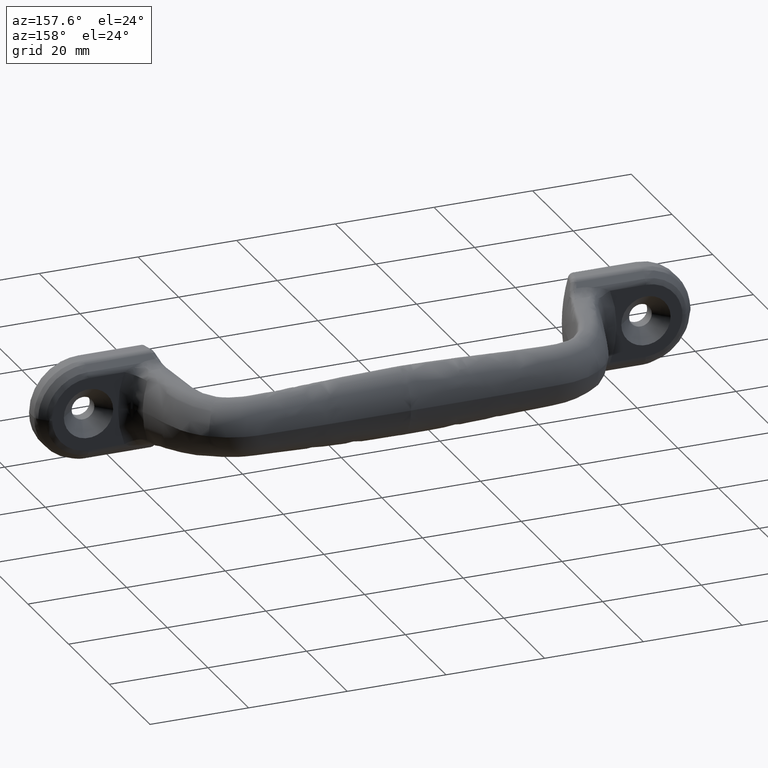
[diagram: clean part render]
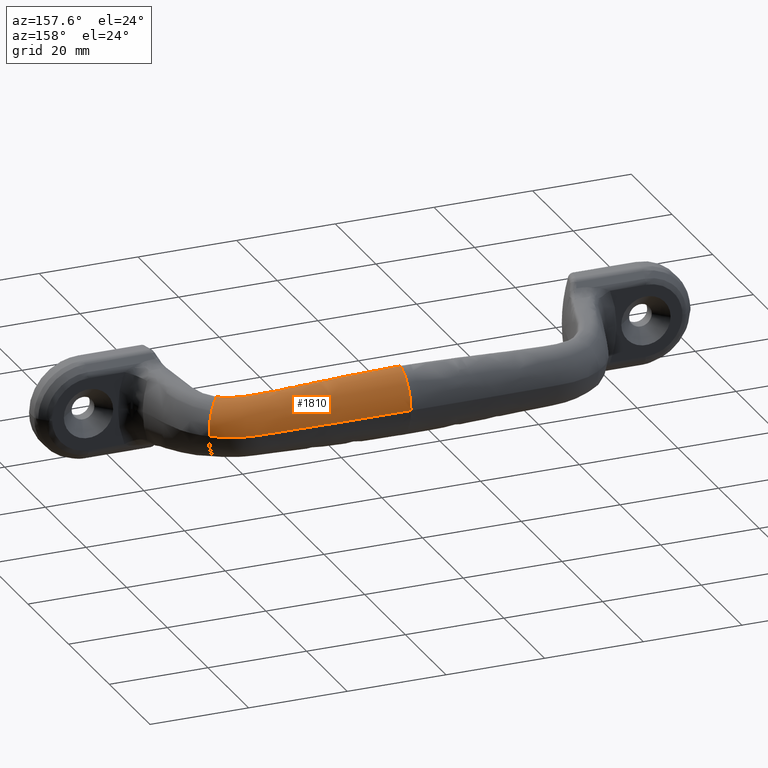
[diagram: same view with one face highlighted and labeled with its STEP entity id]
A machine part, auxiliary view. The second image highlights one B-rep face of the part: STEP entity #1810.
In plain terms, the highlighted face is a freeform B-spline surface patch.
Its self-contained STEP definition (entity closure, byte-faithful):
#261=B_SPLINE_CURVE_WITH_KNOTS('',3,(#10721,#10722,#10723,#10724,#10725,
#10726,#10727,#10728,#10729,#10730,#10731,#10732,#10733,#10734,#10735,#10736,
#10737,#10738,#10739,#10740,#10741,#10742,#10743),.UNSPECIFIED.,.F.,.F.,
(4,1,1,1,1,1,1,1,1,1,1,1,1,1,1,1,1,1,1,1,4),(0.,0.353003254931356,0.354323730462373,
0.363764489947769,0.372333549510409,0.377519572087364,0.390343368558445,
0.418366587694137,0.42100795080128,0.432665383859241,0.463349332040127,
0.465433907205898,0.47472511908588,0.47573455273132,0.550484271001045,0.553026578208625,
0.604720158096089,0.675659492833686,0.682082077134009,0.849921462595966,
1.),.UNSPECIFIED.);
#262=B_SPLINE_CURVE_WITH_KNOTS('',3,(#11274,#11275,#11276,#11277,#11278,
#11279,#11280,#11281,#11282,#11283,#11284,#11285,#11286,#11287,#11288,#11289,
#11290,#11291,#11292,#11293,#11294,#11295,#11296,#11297,#11298,#11299,#11300,
#11301,#11302,#11303,#11304,#11305,#11306,#11307,#11308,#11309,#11310,#11311,
#11312,#11313,#11314,#11315,#11316,#11317,#11318,#11319,#11320,#11321,#11322,
#11323,#11324,#11325,#11326,#11327,#11328,#11329,#11330,#11331),
 .UNSPECIFIED.,.F.,.F.,(4,3,3,3,3,3,3,3,3,3,3,3,3,3,3,3,3,3,3,4),(0.0041073084713925,
0.0124537638370218,0.0207997993101031,0.029144937516268,0.045830638831574,
0.0874983465707772,0.0958200104927912,0.112456388980393,0.120785511921754,
0.145820009038889,0.154175523277909,0.170893472016266,0.179253289586592,
0.212694329669938,0.455001657754051,0.646774399969483,0.655106644598597,
0.663438746250009,0.671770752302562,0.680102710471393),.UNSPECIFIED.);
#264=B_SPLINE_CURVE_WITH_KNOTS('',3,(#11700,#11701,#11702,#11703,#11704,
#11705,#11706,#11707,#11708,#11709,#11710,#11711,#11712,#11713,#11714,#11715,
#11716,#11717,#11718,#11719,#11720,#11721,#11722,#11723,#11724,#11725,#11726,
#11727,#11728,#11729,#11730,#11731,#11732,#11733,#11734,#11735,#11736,#11737,
#11738,#11739,#11740,#11741,#11742,#11743,#11744,#11745,#11746,#11747,#11748,
#11749,#11750,#11751,#11752,#11753,#11754,#11755,#11756,#11757),
 .UNSPECIFIED.,.F.,.F.,(4,3,3,3,3,3,3,3,3,3,3,3,3,3,3,3,3,3,3,4),(0.,0.00833195814589304,
0.0166639641755076,0.024996065803981,0.033328310410156,0.22510105209763,
0.467408379514661,0.500849419505942,0.509209237053253,0.525927185745585,
0.534282699961602,0.559317197009816,0.567646319928246,0.584282698370048,
0.592604362269152,0.634272069893642,0.650957771163012,0.659302909346202,
0.667648944795865,0.675995400138959),.UNSPECIFIED.);
#265=B_SPLINE_CURVE_WITH_KNOTS('',3,(#12287,#12288,#12289,#12290,#12291,
#12292,#12293,#12294,#12295,#12296,#12297,#12298,#12299,#12300,#12301,#12302,
#12303,#12304,#12305,#12306,#12307,#12308,#12309,#12310,#12311,#12312,#12313,
#12314,#12315,#12316,#12317,#12318,#12319,#12320,#12321,#12322,#12323,#12324,
#12325,#12326,#12327,#12328,#12329,#12330,#12331,#12332,#12333,#12334,#12335,
#12336,#12337,#12338,#12339,#12340,#12341,#12342,#12343,#12344,#12345,#12346,
#12347,#12348,#12349,#12350,#12351,#12352,#12353,#12354,#12355,#12356,#12357,
#12358,#12359,#12360,#12361,#12362,#12363,#12364,#12365,#12366,#12367,#12368,
#12369,#12370,#12371,#12372,#12373,#12374,#12375,#12376,#12377,#12378,#12379,
#12380,#12381,#12382,#12383,#12384,#12385,#12386,#12387,#12388,#12389,#12390,
#12391,#12392,#12393,#12394,#12395,#12396,#12397,#12398,#12399,#12400,#12401,
#12402,#12403,#12404,#12405,#12406,#12407,#12408,#12409,#12410,#12411,#12412,
#12413,#12414,#12415,#12416,#12417,#12418,#12419,#12420,#12421,#12422,#12423,
#12424,#12425,#12426,#12427,#12428,#12429,#12430,#12431,#12432,#12433,#12434,
#12435,#12436),.UNSPECIFIED.,.F.,.F.,(4,2,2,2,1,1,1,2,2,2,2,1,1,1,2,2,2,
2,1,1,1,1,2,2,1,2,2,2,2,2,2,2,1,2,2,2,2,2,1,1,1,2,2,2,2,2,1,1,2,2,2,1,1,
1,2,2,2,2,2,1,1,1,2,2,2,2,1,1,1,1,2,2,2,2,1,1,1,2,2,2,2,1,1,1,2,2,2,2,1,
2,2,4),(0.,0.0624999999950294,0.0937499999925442,0.109374999991302,0.117187499990681,
0.12109374999037,0.123046874990215,0.124023437490137,0.12499999999006,0.15624999998758,
0.17187499998634,0.17968749998572,0.183593749985411,0.185546874985256,0.18701171873514,
0.187499999985101,0.218749999982602,0.234374999981353,0.242187499980729,
0.246093749980417,0.248046874980261,0.249023437480181,0.249511718730141,
0.249999999980101,0.312499999974955,0.343749999972381,0.359374999971095,
0.37499999996981,0.406249999967237,0.437499999964665,0.468749999962093,
0.484374999960803,0.492187499960155,0.496093749959834,0.499999999959514,
0.531249999956948,0.546874999955662,0.554687499955019,0.558593749954697,
0.560546874954533,0.561523437454451,0.56201171870441,0.56249999995437,0.578124999955798,
0.585937499956511,0.589843749956866,0.591796874957042,0.59277343745713,
0.593261718707174,0.593749999957218,0.624999999959973,0.64062499996135,
0.648437499962037,0.65234374996238,0.655761718712677,0.656249999962719,
0.671874999964216,0.679687499964966,0.683593749965343,0.685546874965531,
0.686523437465625,0.687011718715671,0.687255859340693,0.687499999965716,
0.718749999968943,0.734374999970556,0.742187499971363,0.746093749971766,
0.748046874971969,0.749023437472071,0.749511718722123,0.749999999972175,
0.781249999975602,0.796874999977316,0.804687499978173,0.808593749978603,
0.810546874978818,0.811523437478926,0.812499999979035,0.843749999982523,
0.859374999984267,0.867187499985139,0.871093749985574,0.873046874985792,
0.874023437485901,0.874999999986009,0.906249999989508,0.921874999991256,
0.92968749999213,0.933593749992567,0.937499999993004,1.),.UNSPECIFIED.);
#410=B_SPLINE_SURFACE_WITH_KNOTS('',3,3,((#11758,#11759,#11760,#11761,#11762,
#11763,#11764,#11765,#11766,#11767,#11768,#11769,#11770,#11771,#11772,#11773,
#11774,#11775,#11776,#11777,#11778,#11779,#11780),(#11781,#11782,#11783,
#11784,#11785,#11786,#11787,#11788,#11789,#11790,#11791,#11792,#11793,#11794,
#11795,#11796,#11797,#11798,#11799,#11800,#11801,#11802,#11803),(#11804,
#11805,#11806,#11807,#11808,#11809,#11810,#11811,#11812,#11813,#11814,#11815,
#11816,#11817,#11818,#11819,#11820,#11821,#11822,#11823,#11824,#11825,#11826),
(#11827,#11828,#11829,#11830,#11831,#11832,#11833,#11834,#11835,#11836,
#11837,#11838,#11839,#11840,#11841,#11842,#11843,#11844,#11845,#11846,#11847,
#11848,#11849),(#11850,#11851,#11852,#11853,#11854,#11855,#11856,#11857,
#11858,#11859,#11860,#11861,#11862,#11863,#11864,#11865,#11866,#11867,#11868,
#11869,#11870,#11871,#11872),(#11873,#11874,#11875,#11876,#11877,#11878,
#11879,#11880,#11881,#11882,#11883,#11884,#11885,#11886,#11887,#11888,#11889,
#11890,#11891,#11892,#11893,#11894,#11895),(#11896,#11897,#11898,#11899,
#11900,#11901,#11902,#11903,#11904,#11905,#11906,#11907,#11908,#11909,#11910,
#11911,#11912,#11913,#11914,#11915,#11916,#11917,#11918),(#11919,#11920,
#11921,#11922,#11923,#11924,#11925,#11926,#11927,#11928,#11929,#11930,#11931,
#11932,#11933,#11934,#11935,#11936,#11937,#11938,#11939,#11940,#11941),
(#11942,#11943,#11944,#11945,#11946,#11947,#11948,#11949,#11950,#11951,
#11952,#11953,#11954,#11955,#11956,#11957,#11958,#11959,#11960,#11961,#11962,
#11963,#11964),(#11965,#11966,#11967,#11968,#11969,#11970,#11971,#11972,
#11973,#11974,#11975,#11976,#11977,#11978,#11979,#11980,#11981,#11982,#11983,
#11984,#11985,#11986,#11987),(#11988,#11989,#11990,#11991,#11992,#11993,
#11994,#11995,#11996,#11997,#11998,#11999,#12000,#12001,#12002,#12003,#12004,
#12005,#12006,#12007,#12008,#12009,#12010),(#12011,#12012,#12013,#12014,
#12015,#12016,#12017,#12018,#12019,#12020,#12021,#12022,#12023,#12024,#12025,
#12026,#12027,#12028,#12029,#12030,#12031,#12032,#12033),(#12034,#12035,
#12036,#12037,#12038,#12039,#12040,#12041,#12042,#12043,#12044,#12045,#12046,
#12047,#12048,#12049,#12050,#12051,#12052,#12053,#12054,#12055,#12056),
(#12057,#12058,#12059,#12060,#12061,#12062,#12063,#12064,#12065,#12066,
#12067,#12068,#12069,#12070,#12071,#12072,#12073,#12074,#12075,#12076,#12077,
#12078,#12079),(#12080,#12081,#12082,#12083,#12084,#12085,#12086,#12087,
#12088,#12089,#12090,#12091,#12092,#12093,#12094,#12095,#12096,#12097,#12098,
#12099,#12100,#12101,#12102),(#12103,#12104,#12105,#12106,#12107,#12108,
#12109,#12110,#12111,#12112,#12113,#12114,#12115,#12116,#12117,#12118,#12119,
#12120,#12121,#12122,#12123,#12124,#12125),(#12126,#12127,#12128,#12129,
#12130,#12131,#12132,#12133,#12134,#12135,#12136,#12137,#12138,#12139,#12140,
#12141,#12142,#12143,#12144,#12145,#12146,#12147,#12148),(#12149,#12150,
#12151,#12152,#12153,#12154,#12155,#12156,#12157,#12158,#12159,#12160,#12161,
#12162,#12163,#12164,#12165,#12166,#12167,#12168,#12169,#12170,#12171),
(#12172,#12173,#12174,#12175,#12176,#12177,#12178,#12179,#12180,#12181,
#12182,#12183,#12184,#12185,#12186,#12187,#12188,#12189,#12190,#12191,#12192,
#12193,#12194),(#12195,#12196,#12197,#12198,#12199,#12200,#12201,#12202,
#12203,#12204,#12205,#12206,#12207,#12208,#12209,#12210,#12211,#12212,#12213,
#12214,#12215,#12216,#12217),(#12218,#12219,#12220,#12221,#12222,#12223,
#12224,#12225,#12226,#12227,#12228,#12229,#12230,#12231,#12232,#12233,#12234,
#12235,#12236,#12237,#12238,#12239,#12240),(#12241,#12242,#12243,#12244,
#12245,#12246,#12247,#12248,#12249,#12250,#12251,#12252,#12253,#12254,#12255,
#12256,#12257,#12258,#12259,#12260,#12261,#12262,#12263),(#12264,#12265,
#12266,#12267,#12268,#12269,#12270,#12271,#12272,#12273,#12274,#12275,#12276,
#12277,#12278,#12279,#12280,#12281,#12282,#12283,#12284,#12285,#12286)),
 .UNSPECIFIED.,.F.,.F.,.F.,(4,1,1,1,1,1,1,1,1,1,1,1,1,1,1,1,1,1,1,1,4),
(4,1,1,1,1,1,1,1,1,1,1,1,1,1,1,1,1,1,1,1,4),(0.,0.00833195816883126,0.0166639642213842,
0.0249960658727962,0.0333283105019102,0.225101052717342,0.467408380801455,
0.500849420884801,0.509209238455127,0.525927187193484,0.534282701432504,
0.559317198549639,0.567646321491,0.584282699978602,0.592604363900616,0.634272071639819,
0.650957772955125,0.65930291116129,0.667648946516208,0.675995401673522,
0.680102710471393),(-4.84566792892465E-6,0.353003254931356,0.354323730462373,
0.363764489947769,0.372333549510409,0.377519572087364,0.390343368558445,
0.418366587694137,0.42100795080128,0.432665383859241,0.463349332040127,
0.465433907205898,0.47472511908588,0.47573455273132,0.550484271001045,0.553026578208625,
0.604720158096089,0.675659492833686,0.682082077134009,0.849921462595966,
1.0000048450564),.UNSPECIFIED.);
#510=FACE_OUTER_BOUND('',#612,.T.);
#612=EDGE_LOOP('',(#1475,#1476,#1477,#1478));
#774=VERTEX_POINT('',#9640);
#775=VERTEX_POINT('',#9696);
#776=VERTEX_POINT('',#11273);
#777=VERTEX_POINT('',#11332);
#1025=EDGE_CURVE('',#775,#774,#261,.T.);
#1026=EDGE_CURVE('',#776,#774,#262,.T.);
#1028=EDGE_CURVE('',#775,#777,#264,.T.);
#1029=EDGE_CURVE('',#777,#776,#265,.T.);
#1475=ORIENTED_EDGE('',*,*,#1028,.T.);
#1476=ORIENTED_EDGE('',*,*,#1029,.T.);
#1477=ORIENTED_EDGE('',*,*,#1026,.T.);
#1478=ORIENTED_EDGE('',*,*,#1025,.F.);
#1810=ADVANCED_FACE('',(#510),#410,.T.);
#9640=CARTESIAN_POINT('',(450.,-50.,0.));
#9696=CARTESIAN_POINT('',(450.,-56.800000191,0.));
#10721=CARTESIAN_POINT('Ctrl Pts',(450.,-56.800000191,0.));
#10722=CARTESIAN_POINT('Ctrl Pts',(450.,-56.799989713,1.986665854));
#10723=CARTESIAN_POINT('Ctrl Pts',(450.,-56.564086508,3.980696868));
#10724=CARTESIAN_POINT('Ctrl Pts',(450.,-56.087848445,5.971781563));
#10725=CARTESIAN_POINT('Ctrl Pts',(450.,-56.062164654,6.077496385));
#10726=CARTESIAN_POINT('Ctrl Pts',(450.,-56.03098987,6.204267304));
#10727=CARTESIAN_POINT('Ctrl Pts',(450.,-55.991498211,6.34863034));
#10728=CARTESIAN_POINT('Ctrl Pts',(450.,-55.884901399,6.586613299));
#10729=CARTESIAN_POINT('Ctrl Pts',(450.,-55.710316642,6.767826394));
#10730=CARTESIAN_POINT('Ctrl Pts',(450.,-55.506757148,6.891783065));
#10731=CARTESIAN_POINT('Ctrl Pts',(450.,-55.275391882,6.997226306));
#10732=CARTESIAN_POINT('Ctrl Pts',(450.,-55.017534856,7.014012011));
#10733=CARTESIAN_POINT('Ctrl Pts',(450.,-54.785818975,6.965938374));
#10734=CARTESIAN_POINT('Ctrl Pts',(450.,-54.71922393,6.94492659));
#10735=CARTESIAN_POINT('Ctrl Pts',(450.,-54.27551201,6.765376007));
#10736=CARTESIAN_POINT('Ctrl Pts',(450.,-53.881720522,6.564256324));
#10737=CARTESIAN_POINT('Ctrl Pts',(450.,-53.266188594,6.179362939));
#10738=CARTESIAN_POINT('Ctrl Pts',(450.,-52.691615783,5.769499481));
#10739=CARTESIAN_POINT('Ctrl Pts',(450.,-52.161586495,5.269465322));
#10740=CARTESIAN_POINT('Ctrl Pts',(450.,-51.244516074,4.238494263));
#10741=CARTESIAN_POINT('Ctrl Pts',(450.,-50.307189531,2.633758351));
#10742=CARTESIAN_POINT('Ctrl Pts',(450.,-50.000038121,0.844645597));
#10743=CARTESIAN_POINT('Ctrl Pts',(450.,-50.,0.));
#11273=CARTESIAN_POINT('',(489.491267111601,-53.4242753773122,-3.49503389223627E-8));
#11274=CARTESIAN_POINT('Ctrl Pts',(489.491267110577,-53.4242753764986,9.12128100185361E-9));
#11275=CARTESIAN_POINT('Ctrl Pts',(489.353431031696,-53.3149946494507,1.43788164710221E-11));
#11276=CARTESIAN_POINT('Ctrl Pts',(489.227797740543,-53.2194947702635,2.77510581065385E-16));
#11277=CARTESIAN_POINT('Ctrl Pts',(489.096746854096,-53.1231764112693,2.77555756156289E-16));
#11278=CARTESIAN_POINT('Ctrl Pts',(488.965702560543,-53.0268628978484,2.77550109270026E-16));
#11279=CARTESIAN_POINT('Ctrl Pts',(488.829243164484,-52.9297327809456,2.77541638940388E-16));
#11280=CARTESIAN_POINT('Ctrl Pts',(488.692172043153,-52.8357725390238,2.77555756156382E-16));
#11281=CARTESIAN_POINT('Ctrl Pts',(488.555115658086,-52.7418223985949,2.77465405975287E-16));
#11282=CARTESIAN_POINT('Ctrl Pts',(488.41744767926,-52.6510414516245,2.77510581065769E-16));
#11283=CARTESIAN_POINT('Ctrl Pts',(488.278076738468,-52.5625219393897,2.77555756156289E-16));
#11284=CARTESIAN_POINT('Ctrl Pts',(487.999411264914,-52.3855314444167,2.77216942977387E-16));
#11285=CARTESIAN_POINT('Ctrl Pts',(487.713937677508,-52.2175817298312,2.77375055794208E-16));
#11286=CARTESIAN_POINT('Ctrl Pts',(487.423009526467,-52.0595475678857,2.77555756156289E-16));
#11287=CARTESIAN_POINT('Ctrl Pts',(486.696500706632,-51.6649030067537,2.76200503440682E-16));
#11288=CARTESIAN_POINT('Ctrl Pts',(485.935976900442,-51.332092427277,2.76832954707966E-16));
#11289=CARTESIAN_POINT('Ctrl Pts',(485.151699449045,-51.0662959675301,2.77555756156289E-16));
#11290=CARTESIAN_POINT('Ctrl Pts',(484.995067521679,-51.0132124424292,2.77197178875285E-16));
#11291=CARTESIAN_POINT('Ctrl Pts',(484.837488155021,-50.9628018464547,2.77375055794208E-16));
#11292=CARTESIAN_POINT('Ctrl Pts',(484.679023430849,-50.9151020262613,2.77555756156289E-16));
#11293=CARTESIAN_POINT('Ctrl Pts',(484.362226315156,-50.8197422196212,2.76855542253225E-16));
#11294=CARTESIAN_POINT('Ctrl Pts',(484.041890726212,-50.7352164630051,2.77194355432127E-16));
#11295=CARTESIAN_POINT('Ctrl Pts',(483.719496924289,-50.6618155006857,2.77555756156289E-16));
#11296=CARTESIAN_POINT('Ctrl Pts',(483.558088140896,-50.625066779224,2.77200002318442E-16));
#11297=CARTESIAN_POINT('Ctrl Pts',(483.396163450678,-50.5911065725366,2.77375055794208E-16));
#11298=CARTESIAN_POINT('Ctrl Pts',(483.233790252435,-50.5599497714149,2.77555756156289E-16));
#11299=CARTESIAN_POINT('Ctrl Pts',(482.745751908911,-50.4663030749557,2.76155328350162E-16));
#11300=CARTESIAN_POINT('Ctrl Pts',(482.253661752172,-50.3979822926242,2.76832954707966E-16));
#11301=CARTESIAN_POINT('Ctrl Pts',(481.75976132836,-50.354601687232,2.77555756156289E-16));
#11302=CARTESIAN_POINT('Ctrl Pts',(481.594917113416,-50.3401229755425,2.77200002318442E-16));
#11303=CARTESIAN_POINT('Ctrl Pts',(481.429871242412,-50.328422493579,2.77375055794208E-16));
#11304=CARTESIAN_POINT('Ctrl Pts',(481.264713207534,-50.3198630399948,2.77555756156289E-16));
#11305=CARTESIAN_POINT('Ctrl Pts',(480.934260349479,-50.3027370436579,2.76855542253226E-16));
#11306=CARTESIAN_POINT('Ctrl Pts',(480.603358464265,-50.2981855689274,2.77194355432127E-16));
#11307=CARTESIAN_POINT('Ctrl Pts',(480.272542924192,-50.2922748083317,2.77555756156289E-16));
#11308=CARTESIAN_POINT('Ctrl Pts',(480.107118468852,-50.2893191299135,2.77197178875285E-16));
#11309=CARTESIAN_POINT('Ctrl Pts',(479.941715604152,-50.2860235614675,2.77375055794208E-16));
#11310=CARTESIAN_POINT('Ctrl Pts',(479.776315288848,-50.2827816971769,2.77555756156289E-16));
#11311=CARTESIAN_POINT('Ctrl Pts',(479.114679011817,-50.2698135537008,2.76155328350162E-16));
#11312=CARTESIAN_POINT('Ctrl Pts',(478.453083529429,-50.2577047676699,2.76832954707966E-16));
#11313=CARTESIAN_POINT('Ctrl Pts',(477.791451021266,-50.2460095231126,2.77555756156289E-16));
#11314=CARTESIAN_POINT('Ctrl Pts',(472.997389448216,-50.1612680362177,2.63099727189815E-16));
#11315=CARTESIAN_POINT('Ctrl Pts',(468.201383958262,-50.0982381886278,2.717733445697E-16));
#11316=CARTESIAN_POINT('Ctrl Pts',(463.399356695396,-50.0572176177264,2.77555756156289E-16));
#11317=CARTESIAN_POINT('Ctrl Pts',(459.598819816572,-50.0247521226413,2.717733445697E-16));
#11318=CARTESIAN_POINT('Ctrl Pts',(455.794510995513,-50.0060728864407,2.76110153259642E-16));
#11319=CARTESIAN_POINT('Ctrl Pts',(451.98523843924,-50.0012557450275,2.77555756156289E-16));
#11320=CARTESIAN_POINT('Ctrl Pts',(451.819731128706,-50.0010464472921,2.77459759088934E-16));
#11321=CARTESIAN_POINT('Ctrl Pts',(451.654214447756,-50.0008633180748,2.77510581065769E-16));
#11322=CARTESIAN_POINT('Ctrl Pts',(451.488894699239,-50.0007063495257,2.77555756156289E-16));
#11323=CARTESIAN_POINT('Ctrl Pts',(451.323577787538,-50.00054938367,2.77504934179454E-16));
#11324=CARTESIAN_POINT('Ctrl Pts',(451.158457801512,-50.0004185775846,2.77533168611029E-16));
#11325=CARTESIAN_POINT('Ctrl Pts',(450.992596533497,-50.0003139324833,2.77555756156289E-16));
#11326=CARTESIAN_POINT('Ctrl Pts',(450.826737168501,-50.0002092885827,2.77527521724714E-16));
#11327=CARTESIAN_POINT('Ctrl Pts',(450.660136538527,-50.0001308050658,2.77544462383659E-16));
#11328=CARTESIAN_POINT('Ctrl Pts',(450.496298286553,-50.000078482845,2.77555756156289E-16));
#11329=CARTESIAN_POINT('Ctrl Pts',(450.332460976151,-50.0000261609248,2.77550098240899E-16));
#11330=CARTESIAN_POINT('Ctrl Pts',(450.171386012,-50.,-2.77556136659371E-16));
#11331=CARTESIAN_POINT('Ctrl Pts',(450.,-50.,-2.77555756156289E-16));
#11332=CARTESIAN_POINT('',(485.46069212695,-58.5237326998662,0.));
#11700=CARTESIAN_POINT('Ctrl Pts',(450.,-56.800000191,0.));
#11701=CARTESIAN_POINT('Ctrl Pts',(450.142537197,-56.800000193,0.));
#11702=CARTESIAN_POINT('Ctrl Pts',(450.293728494552,-56.8000001620001,0.));
#11703=CARTESIAN_POINT('Ctrl Pts',(450.442600516328,-56.8000000991672,0.));
#11704=CARTESIAN_POINT('Ctrl Pts',(450.591473393671,-56.8000000363341,0.));
#11705=CARTESIAN_POINT('Ctrl Pts',(450.738026968581,-56.7999999416676,-4.28074129218139E-24));
#11706=CARTESIAN_POINT('Ctrl Pts',(450.885201036032,-56.799999810169,-7.33134306705306E-20));
#11707=CARTESIAN_POINT('Ctrl Pts',(451.032376792113,-56.7999996786689,-1.46623421726269E-19));
#11708=CARTESIAN_POINT('Ctrl Pts',(451.180173054975,-56.7999995103359,-7.02511859607059E-25));
#11709=CARTESIAN_POINT('Ctrl Pts',(451.327801563887,-56.7999993018301,-3.77243576110693E-21));
#11710=CARTESIAN_POINT('Ctrl Pts',(451.475432606084,-56.7999990933206,-7.54423373277066E-21));
#11711=CARTESIAN_POINT('Ctrl Pts',(451.622895888575,-56.799998844637,0.));
#11712=CARTESIAN_POINT('Ctrl Pts',(451.770362355384,-56.7999985502632,0.));
#11713=CARTESIAN_POINT('Ctrl Pts',(455.164411616251,-56.7999917750334,0.));
#11714=CARTESIAN_POINT('Ctrl Pts',(458.560147687576,-56.7999607966218,-4.60149140970634E-20));
#11715=CARTESIAN_POINT('Ctrl Pts',(461.950574260238,-56.7998673934894,-9.71600528246021E-20));
#11716=CARTESIAN_POINT('Ctrl Pts',(466.234421872764,-56.7997493774294,-1.61782593892714E-19));
#11717=CARTESIAN_POINT('Ctrl Pts',(470.509793057702,-56.7995317025016,-6.46641197065144E-21));
#11718=CARTESIAN_POINT('Ctrl Pts',(474.785702248338,-56.7991488170075,-7.82324343933843E-22));
#11719=CARTESIAN_POINT('Ctrl Pts',(475.375824106258,-56.7990959746553,2.14141558429298E-24));
#11720=CARTESIAN_POINT('Ctrl Pts',(475.965956211571,-56.7990399855385,-3.30904589953953E-22));
#11721=CARTESIAN_POINT('Ctrl Pts',(476.55611938818,-56.798980566224,-6.61459734302756E-23));
#11722=CARTESIAN_POINT('Ctrl Pts',(476.703652374023,-56.7989657121816,4.01777418617727E-26));
#11723=CARTESIAN_POINT('Ctrl Pts',(476.851187301616,-56.7989506437745,0.));
#11724=CARTESIAN_POINT('Ctrl Pts',(476.99872132716,-56.7989352432716,0.));
#11725=CARTESIAN_POINT('Ctrl Pts',(477.293759616625,-56.7989044453725,0.));
#11726=CARTESIAN_POINT('Ctrl Pts',(477.588794298619,-56.7988723193581,0.));
#11727=CARTESIAN_POINT('Ctrl Pts',(477.8839282347,-56.7988412757868,0.));
#11728=CARTESIAN_POINT('Ctrl Pts',(478.031434118581,-56.7988257604263,0.));
#11729=CARTESIAN_POINT('Ctrl Pts',(478.178964795446,-56.7988105154526,-1.78667034613021E-23));
#11730=CARTESIAN_POINT('Ctrl Pts',(478.32653438312,-56.7987726300451,-3.46674032190764E-20));
#11731=CARTESIAN_POINT('Ctrl Pts',(478.76867717787,-56.798659119123,-1.38483122658505E-19));
#11732=CARTESIAN_POINT('Ctrl Pts',(479.211169275076,-56.7983423649556,-5.34737617550611E-23));
#11733=CARTESIAN_POINT('Ctrl Pts',(479.654344903946,-56.7986011058087,-4.07851849574676E-20));
#11734=CARTESIAN_POINT('Ctrl Pts',(479.801792015833,-56.7986871903968,-5.43368624117312E-20));
#11735=CARTESIAN_POINT('Ctrl Pts',(479.949314790002,-56.7988369783497,-1.94799605990005E-22));
#11736=CARTESIAN_POINT('Ctrl Pts',(480.09698161638,-56.7987467687504,-2.35852473024535E-20));
#11737=CARTESIAN_POINT('Ctrl Pts',(480.391927582597,-56.7985665863893,-7.03047330889405E-20));
#11738=CARTESIAN_POINT('Ctrl Pts',(480.687448245852,-56.7974289325369,-2.48964330927119E-21));
#11739=CARTESIAN_POINT('Ctrl Pts',(480.981893790222,-56.8145328320749,-8.29918037912178E-22));
#11740=CARTESIAN_POINT('Ctrl Pts',(481.129178060378,-56.8230883541686,2.91248406732596E-25));
#11741=CARTESIAN_POINT('Ctrl Pts',(481.276193326215,-56.8362080753412,-8.53770201670604E-24));
#11742=CARTESIAN_POINT('Ctrl Pts',(481.422694383723,-56.8533450110939,-2.66164248792227E-20));
#11743=CARTESIAN_POINT('Ctrl Pts',(482.156245186172,-56.9391519887828,-1.59845749789184E-19));
#11744=CARTESIAN_POINT('Ctrl Pts',(482.876904057337,-57.1256762268671,-1.24957258562643E-22));
#11745=CARTESIAN_POINT('Ctrl Pts',(483.557773721432,-57.407197853685,-1.52729894222578E-19));
#11746=CARTESIAN_POINT('Ctrl Pts',(483.830425817412,-57.5199322956247,-2.13840056878033E-19));
#11747=CARTESIAN_POINT('Ctrl Pts',(484.096697409231,-57.6479002965789,-9.96339856145874E-20));
#11748=CARTESIAN_POINT('Ctrl Pts',(484.355463738465,-57.7903976890606,-3.32151657184192E-20));
#11749=CARTESIAN_POINT('Ctrl Pts',(484.484882378998,-57.8616659211719,3.35000650604754E-24));
#11750=CARTESIAN_POINT('Ctrl Pts',(484.612423674791,-57.9365684933792,-1.54181293175105E-16));
#11751=CARTESIAN_POINT('Ctrl Pts',(484.737224019183,-58.0144237177894,-2.32666680932389E-16));
#11752=CARTESIAN_POINT('Ctrl Pts',(484.862037782067,-58.0922873131673,-3.11160507412369E-16));
#11753=CARTESIAN_POINT('Ctrl Pts',(484.98411000412,-58.1731041956974,-8.35702605809242E-17));
#11754=CARTESIAN_POINT('Ctrl Pts',(485.105999773373,-58.2590829923966,-4.17851606021031E-17));
#11755=CARTESIAN_POINT('Ctrl Pts',(485.227895674965,-58.3450661147343,2.04160707033829E-21));
#11756=CARTESIAN_POINT('Ctrl Pts',(485.349606458176,-58.436209587904,-2.07734808870451E-30));
#11757=CARTESIAN_POINT('Ctrl Pts',(485.460692052643,-58.5237326413201,-4.63194636320409E-37));
#11758=CARTESIAN_POINT('Ctrl Pts',(450.,-56.8000001912986,-8.18127556965665E-5));
#11759=CARTESIAN_POINT('Ctrl Pts',(450.,-56.7999961652974,1.98661131396718));
#11760=CARTESIAN_POINT('Ctrl Pts',(450.,-56.5640928519164,3.98067034497338));
#11761=CARTESIAN_POINT('Ctrl Pts',(450.,-56.087848445,5.971781563));
#11762=CARTESIAN_POINT('Ctrl Pts',(450.,-56.062164654,6.077496385));
#11763=CARTESIAN_POINT('Ctrl Pts',(450.,-56.03098987,6.204267304));
#11764=CARTESIAN_POINT('Ctrl Pts',(450.,-55.991498211,6.34863034));
#11765=CARTESIAN_POINT('Ctrl Pts',(450.,-55.884901399,6.586613299));
#11766=CARTESIAN_POINT('Ctrl Pts',(450.,-55.710316642,6.767826394));
#11767=CARTESIAN_POINT('Ctrl Pts',(450.,-55.506757148,6.891783065));
#11768=CARTESIAN_POINT('Ctrl Pts',(450.,-55.275391882,6.997226306));
#11769=CARTESIAN_POINT('Ctrl Pts',(450.,-55.017534856,7.014012011));
#11770=CARTESIAN_POINT('Ctrl Pts',(450.,-54.785818975,6.965938374));
#11771=CARTESIAN_POINT('Ctrl Pts',(450.,-54.71922393,6.94492659));
#11772=CARTESIAN_POINT('Ctrl Pts',(450.,-54.27551201,6.765376007));
#11773=CARTESIAN_POINT('Ctrl Pts',(450.,-53.881720522,6.564256324));
#11774=CARTESIAN_POINT('Ctrl Pts',(450.,-53.266188594,6.179362939));
#11775=CARTESIAN_POINT('Ctrl Pts',(450.,-52.691615783,5.769499481));
#11776=CARTESIAN_POINT('Ctrl Pts',(450.,-52.161586495,5.269465322));
#11777=CARTESIAN_POINT('Ctrl Pts',(450.,-51.244516074,4.238494263));
#11778=CARTESIAN_POINT('Ctrl Pts',(450.,-50.3071755290488,2.63373437916846));
#11779=CARTESIAN_POINT('Ctrl Pts',(450.,-50.0000287591917,0.844591064936493));
#11780=CARTESIAN_POINT('Ctrl Pts',(450.,-49.9999999967612,-8.18042800099798E-5));
#11781=CARTESIAN_POINT('Ctrl Pts',(450.142537195895,-56.8000001932986,-8.18127548317669E-5));
#11782=CARTESIAN_POINT('Ctrl Pts',(450.142564012557,-56.7999961682975,1.98661129296776));
#11783=CARTESIAN_POINT('Ctrl Pts',(450.143823287505,-56.5640928499165,3.98067030297371));
#11784=CARTESIAN_POINT('Ctrl Pts',(450.146337766,-56.087848436,5.971781496));
#11785=CARTESIAN_POINT('Ctrl Pts',(450.146481292,-56.062164645,6.077496317));
#11786=CARTESIAN_POINT('Ctrl Pts',(450.146723718,-56.030989859,6.204267233));
#11787=CARTESIAN_POINT('Ctrl Pts',(450.147057846,-55.991498197,6.348630266));
#11788=CARTESIAN_POINT('Ctrl Pts',(450.147753857,-55.884901381,6.586613219));
#11789=CARTESIAN_POINT('Ctrl Pts',(450.148609427,-55.710316622,6.767826309));
#11790=CARTESIAN_POINT('Ctrl Pts',(450.149497845,-55.506757129,6.891782976));
#11791=CARTESIAN_POINT('Ctrl Pts',(450.150484143,-55.275391863,6.997226212));
#11792=CARTESIAN_POINT('Ctrl Pts',(450.151533047,-55.017534838,7.014011914));
#11793=CARTESIAN_POINT('Ctrl Pts',(450.152501914,-54.78581896,6.965938276));
#11794=CARTESIAN_POINT('Ctrl Pts',(450.152786233,-54.719223916,6.944926493));
#11795=CARTESIAN_POINT('Ctrl Pts',(450.154735383,-54.275511998,6.765375914));
#11796=CARTESIAN_POINT('Ctrl Pts',(450.15651927,-53.881720511,6.564256236));
#11797=CARTESIAN_POINT('Ctrl Pts',(450.159416252,-53.266188585,6.179362858));
#11798=CARTESIAN_POINT('Ctrl Pts',(450.162082152,-52.691615776,5.769499407));
#11799=CARTESIAN_POINT('Ctrl Pts',(450.164160476,-52.16158649,5.269465257));
#11800=CARTESIAN_POINT('Ctrl Pts',(450.167098475,-51.244516072,4.238494212));
#11801=CARTESIAN_POINT('Ctrl Pts',(450.170320313128,-50.3071755290488,2.63373434916877));
#11802=CARTESIAN_POINT('Ctrl Pts',(450.171392620684,-50.0000287591917,0.844591054937103));
#11803=CARTESIAN_POINT('Ctrl Pts',(450.171386011361,-49.9999999967612,-8.18042790414739E-5));
#11804=CARTESIAN_POINT('Ctrl Pts',(450.444920661493,-56.8000001312985,-8.18103654605769E-5));
#11805=CARTESIAN_POINT('Ctrl Pts',(450.444909075839,-56.7999961112145,1.98655327596773));
#11806=CARTESIAN_POINT('Ctrl Pts',(450.416360125156,-56.563839888542,3.98035634991339));
#11807=CARTESIAN_POINT('Ctrl Pts',(450.445475988,-56.08874965,5.972297853));
#11808=CARTESIAN_POINT('Ctrl Pts',(450.443749705,-56.06345633,6.078248828));
#11809=CARTESIAN_POINT('Ctrl Pts',(450.444155107,-56.031472316,6.205032381));
#11810=CARTESIAN_POINT('Ctrl Pts',(450.444305266,-55.988870709,6.348457707));
#11811=CARTESIAN_POINT('Ctrl Pts',(450.445807737,-55.883255589,6.586006152));
#11812=CARTESIAN_POINT('Ctrl Pts',(450.447739111,-55.709125514,6.766958932));
#11813=CARTESIAN_POINT('Ctrl Pts',(450.449970542,-55.506198616,6.890612625));
#11814=CARTESIAN_POINT('Ctrl Pts',(450.452638764,-55.275327249,6.995786455));
#11815=CARTESIAN_POINT('Ctrl Pts',(450.455266978,-55.018220083,7.012424356));
#11816=CARTESIAN_POINT('Ctrl Pts',(450.457869695,-54.787038011,6.964259319));
#11817=CARTESIAN_POINT('Ctrl Pts',(450.458611941,-54.720429465,6.94368124));
#11818=CARTESIAN_POINT('Ctrl Pts',(450.46398408,-54.274665837,6.76869054));
#11819=CARTESIAN_POINT('Ctrl Pts',(450.468103712,-53.881941461,6.563601552));
#11820=CARTESIAN_POINT('Ctrl Pts',(450.477326579,-53.266113804,6.179387993));
#11821=CARTESIAN_POINT('Ctrl Pts',(450.480638479,-52.691677723,5.769185753));
#11822=CARTESIAN_POINT('Ctrl Pts',(450.492907025,-52.161609102,5.269308343));
#11823=CARTESIAN_POINT('Ctrl Pts',(450.491833633,-51.244582403,4.238321456));
#11824=CARTESIAN_POINT('Ctrl Pts',(450.528640905825,-50.3072409530352,2.63366533871851));
#11825=CARTESIAN_POINT('Ctrl Pts',(450.493532396928,-50.0000810827924,0.844566377288356));
#11826=CARTESIAN_POINT('Ctrl Pts',(450.493536866381,-50.0000523187611,-8.180188885826E-5));
#11827=CARTESIAN_POINT('Ctrl Pts',(450.884582224842,-56.7999998472989,-8.17996119332941E-5));
#11828=CARTESIAN_POINT('Ctrl Pts',(450.884586399839,-56.79999581386,1.98629215656742));
#11829=CARTESIAN_POINT('Ctrl Pts',(450.859949560826,-56.5641084752383,3.97967111554091));
#11830=CARTESIAN_POINT('Ctrl Pts',(450.888714829,-56.090467391,5.973367215));
#11831=CARTESIAN_POINT('Ctrl Pts',(450.890385603,-56.064623087,6.079229774));
#11832=CARTESIAN_POINT('Ctrl Pts',(450.891402911,-56.031014935,6.205633068));
#11833=CARTESIAN_POINT('Ctrl Pts',(450.892801866,-55.98571652,6.348070276));
#11834=CARTESIAN_POINT('Ctrl Pts',(450.895496434,-55.878921902,6.584124183));
#11835=CARTESIAN_POINT('Ctrl Pts',(450.898851433,-55.70621371,6.764193656));
#11836=CARTESIAN_POINT('Ctrl Pts',(450.90266543,-55.504560447,6.88700657));
#11837=CARTESIAN_POINT('Ctrl Pts',(450.907143082,-55.275150796,6.991670957));
#11838=CARTESIAN_POINT('Ctrl Pts',(450.911811402,-55.019699566,7.007931373));
#11839=CARTESIAN_POINT('Ctrl Pts',(450.916332425,-54.78906068,6.961038122));
#11840=CARTESIAN_POINT('Ctrl Pts',(450.917680642,-54.722393202,6.941234247));
#11841=CARTESIAN_POINT('Ctrl Pts',(450.926637114,-54.274481728,6.77259158));
#11842=CARTESIAN_POINT('Ctrl Pts',(450.935052572,-53.88193444,6.563587502));
#11843=CARTESIAN_POINT('Ctrl Pts',(450.949502079,-53.266137106,6.178695267));
#11844=CARTESIAN_POINT('Ctrl Pts',(450.959441905,-52.691717444,5.768410261));
#11845=CARTESIAN_POINT('Ctrl Pts',(450.974591835,-52.161750821,5.268493454));
#11846=CARTESIAN_POINT('Ctrl Pts',(450.988148926,-51.244824176,4.237669954));
#11847=CARTESIAN_POINT('Ctrl Pts',(451.031082758344,-50.307537667856,2.63328983384135));
#11848=CARTESIAN_POINT('Ctrl Pts',(450.993338787603,-50.0003165379253,0.844455316348464));
#11849=CARTESIAN_POINT('Ctrl Pts',(450.993339710033,-50.0002877697605,-8.1791131822131E-5));
#11850=CARTESIAN_POINT('Ctrl Pts',(451.327971854013,-56.7999993422999,-8.17817081773535E-5));
#11851=CARTESIAN_POINT('Ctrl Pts',(451.327971889128,-56.7999952754278,1.98585740975629));
#11852=CARTESIAN_POINT('Ctrl Pts',(451.303105079772,-56.5649280878509,3.97882727406515));
#11853=CARTESIAN_POINT('Ctrl Pts',(451.33600329,-56.092066797,5.974210652));
#11854=CARTESIAN_POINT('Ctrl Pts',(451.337941256,-56.06591161,6.080160321));
#11855=CARTESIAN_POINT('Ctrl Pts',(451.339859049,-56.030415127,6.206007349));
#11856=CARTESIAN_POINT('Ctrl Pts',(451.342036463,-55.982208205,6.347268011));
#11857=CARTESIAN_POINT('Ctrl Pts',(451.346078371,-55.873772754,6.581415983));
#11858=CARTESIAN_POINT('Ctrl Pts',(451.35071199,-55.7027884,6.760295921));
#11859=CARTESIAN_POINT('Ctrl Pts',(451.356004643,-55.502551392,6.882210297));
#11860=CARTESIAN_POINT('Ctrl Pts',(451.362096276,-55.274741834,6.985985695));
#11861=CARTESIAN_POINT('Ctrl Pts',(451.368589087,-55.021391694,7.002084289));
#11862=CARTESIAN_POINT('Ctrl Pts',(451.374843673,-54.791379652,6.956563486));
#11863=CARTESIAN_POINT('Ctrl Pts',(451.376689009,-54.724673892,6.937409066));
#11864=CARTESIAN_POINT('Ctrl Pts',(451.389179323,-54.274208515,6.77749161));
#11865=CARTESIAN_POINT('Ctrl Pts',(451.400857535,-53.882103863,6.56249119));
#11866=CARTESIAN_POINT('Ctrl Pts',(451.420391632,-53.266119576,6.177808014));
#11867=CARTESIAN_POINT('Ctrl Pts',(451.434973984,-52.69184778,5.766869405));
#11868=CARTESIAN_POINT('Ctrl Pts',(451.454625478,-52.161959993,5.267211713));
#11869=CARTESIAN_POINT('Ctrl Pts',(451.479290628,-51.245210091,4.236581419));
#11870=CARTESIAN_POINT('Ctrl Pts',(451.530661698379,-50.3080015460206,2.63268516906938));
#11871=CARTESIAN_POINT('Ctrl Pts',(451.488698201997,-50.0007089647475,0.84427041114252));
#11872=CARTESIAN_POINT('Ctrl Pts',(451.488700607171,-50.0006801887597,-8.17732224777651E-5));
#11873=CARTESIAN_POINT('Ctrl Pts',(455.016871859617,-56.7999931213119,-8.15730097286877E-5));
#11874=CARTESIAN_POINT('Ctrl Pts',(455.01688097642,-56.7999885993701,1.98078962480432));
#11875=CARTESIAN_POINT('Ctrl Pts',(455.030941518432,-56.576879207932,3.9747083236878));
#11876=CARTESIAN_POINT('Ctrl Pts',(455.077978671,-56.098906998,5.971846664));
#11877=CARTESIAN_POINT('Ctrl Pts',(455.081058445,-56.069347653,6.076453878));
#11878=CARTESIAN_POINT('Ctrl Pts',(455.085757828,-56.025581675,6.198742001));
#11879=CARTESIAN_POINT('Ctrl Pts',(455.091851745,-55.96694563,6.334380058));
#11880=CARTESIAN_POINT('Ctrl Pts',(455.103778199,-55.847452105,6.557671985));
#11881=CARTESIAN_POINT('Ctrl Pts',(455.118808254,-55.682197233,6.728055511));
#11882=CARTESIAN_POINT('Ctrl Pts',(455.135851399,-55.489985055,6.844098876));
#11883=CARTESIAN_POINT('Ctrl Pts',(455.154982214,-55.271884514,6.943499173));
#11884=CARTESIAN_POINT('Ctrl Pts',(455.17636973,-55.028848509,6.960103034));
#11885=CARTESIAN_POINT('Ctrl Pts',(455.19674013,-54.801158079,6.92521532));
#11886=CARTESIAN_POINT('Ctrl Pts',(455.20276181,-54.73422725,6.910379685));
#11887=CARTESIAN_POINT('Ctrl Pts',(455.2441875,-54.277095693,6.782519533));
#11888=CARTESIAN_POINT('Ctrl Pts',(455.28078787,-53.881835025,6.554702131));
#11889=CARTESIAN_POINT('Ctrl Pts',(455.337404483,-53.266404836,6.163581214));
#11890=CARTESIAN_POINT('Ctrl Pts',(455.38982698,-52.693098165,5.75073048));
#11891=CARTESIAN_POINT('Ctrl Pts',(455.441460158,-52.164286485,5.252161741));
#11892=CARTESIAN_POINT('Ctrl Pts',(455.543844716,-51.249523112,4.224276577));
#11893=CARTESIAN_POINT('Ctrl Pts',(455.62210238701,-50.3131719698284,2.62560825616395));
#11894=CARTESIAN_POINT('Ctrl Pts',(455.629218278905,-50.005290176789,0.842115059149063));
#11895=CARTESIAN_POINT('Ctrl Pts',(455.629219352114,-50.0052612977488,-8.15644617309004E-5));
#11896=CARTESIAN_POINT('Ctrl Pts',(462.850703920319,-56.7999216553616,-7.95415688251092E-5));
#11897=CARTESIAN_POINT('Ctrl Pts',(462.850695491535,-56.7999159608782,1.93146130103356));
#11898=CARTESIAN_POINT('Ctrl Pts',(462.900691470961,-56.5741922521241,3.87820750773438));
#11899=CARTESIAN_POINT('Ctrl Pts',(463.013826452,-56.075786297,5.817237365));
#11900=CARTESIAN_POINT('Ctrl Pts',(463.020547589,-56.045515888,5.918612144));
#11901=CARTESIAN_POINT('Ctrl Pts',(463.030254248,-56.000956248,6.036207422));
#11902=CARTESIAN_POINT('Ctrl Pts',(463.043330838,-55.941369539,6.166140235));
#11903=CARTESIAN_POINT('Ctrl Pts',(463.070898658,-55.816203185,6.377881635));
#11904=CARTESIAN_POINT('Ctrl Pts',(463.109269279,-55.647207824,6.535893959));
#11905=CARTESIAN_POINT('Ctrl Pts',(463.153316567,-55.455631996,6.642457059));
#11906=CARTESIAN_POINT('Ctrl Pts',(463.203170712,-55.239847488,6.732716699));
#11907=CARTESIAN_POINT('Ctrl Pts',(463.258578223,-55.001607751,6.746500567));
#11908=CARTESIAN_POINT('Ctrl Pts',(463.310508517,-54.778196931,6.712383625));
#11909=CARTESIAN_POINT('Ctrl Pts',(463.325734283,-54.712664998,6.697750683));
#11910=CARTESIAN_POINT('Ctrl Pts',(463.429447877,-54.265835744,6.57355091));
#11911=CARTESIAN_POINT('Ctrl Pts',(463.519840568,-53.875236374,6.360359012));
#11912=CARTESIAN_POINT('Ctrl Pts',(463.660170507,-53.268881401,5.985309895));
#11913=CARTESIAN_POINT('Ctrl Pts',(463.791000524,-52.704072296,5.588818731));
#11914=CARTESIAN_POINT('Ctrl Pts',(463.91221694,-52.182102966,5.107825632));
#11915=CARTESIAN_POINT('Ctrl Pts',(464.121319982,-51.278349228,4.11353707));
#11916=CARTESIAN_POINT('Ctrl Pts',(464.335994444798,-50.3524287556413,2.56016273776353));
#11917=CARTESIAN_POINT('Ctrl Pts',(464.405603816689,-50.0483837627341,0.821134738424053));
#11918=CARTESIAN_POINT('Ctrl Pts',(464.40561297799,-50.0483535746277,-7.95323776498557E-5));
#11919=CARTESIAN_POINT('Ctrl Pts',(471.099840664807,-56.7995016614516,-7.55368744885847E-5));
#11920=CARTESIAN_POINT('Ctrl Pts',(471.099844107627,-56.7994938987643,1.83421763494279));
#11921=CARTESIAN_POINT('Ctrl Pts',(471.190456138087,-56.5652190931766,3.68444520601659));
#11922=CARTESIAN_POINT('Ctrl Pts',(471.389988468,-56.042936605,5.51257395));
#11923=CARTESIAN_POINT('Ctrl Pts',(471.402556322,-56.009889903,5.607148936));
#11924=CARTESIAN_POINT('Ctrl Pts',(471.421489286,-55.96005476,5.715412946));
#11925=CARTESIAN_POINT('Ctrl Pts',(471.446717501,-55.893639732,5.833509928));
#11926=CARTESIAN_POINT('Ctrl Pts',(471.498211258,-55.75878672,6.023405434));
#11927=CARTESIAN_POINT('Ctrl Pts',(471.564594158,-55.586854928,6.159895208));
#11928=CARTESIAN_POINT('Ctrl Pts',(471.637972906,-55.39755425,6.248225588));
#11929=CARTESIAN_POINT('Ctrl Pts',(471.719888741,-55.186369395,6.320916743));
#11930=CARTESIAN_POINT('Ctrl Pts',(471.808120035,-54.959343312,6.324331743));
#11931=CARTESIAN_POINT('Ctrl Pts',(471.890636483,-54.746303862,6.289671261));
#11932=CARTESIAN_POINT('Ctrl Pts',(471.914869842,-54.683668118,6.276075207));
#11933=CARTESIAN_POINT('Ctrl Pts',(472.080389922,-54.255320067,6.163446203));
#11934=CARTESIAN_POINT('Ctrl Pts',(472.225245012,-53.879379624,5.972859262));
#11935=CARTESIAN_POINT('Ctrl Pts',(472.451301556,-53.29402537,5.632774897));
#11936=CARTESIAN_POINT('Ctrl Pts',(472.662377412,-52.747800847,5.27010964));
#11937=CARTESIAN_POINT('Ctrl Pts',(472.857978584,-52.239215221,4.823788391));
#11938=CARTESIAN_POINT('Ctrl Pts',(473.197084204,-51.351463326,3.895823126));
#11939=CARTESIAN_POINT('Ctrl Pts',(473.544850848923,-50.4550903410204,2.43130224105236));
#11940=CARTESIAN_POINT('Ctrl Pts',(473.659277945728,-50.1699996404529,0.779775020400033));
#11941=CARTESIAN_POINT('Ctrl Pts',(473.65929023936,-50.1699668354022,-7.55264131623438E-5));
#11942=CARTESIAN_POINT('Ctrl Pts',(476.113481429768,-56.7990259894761,-7.39051370130414E-5));
#11943=CARTESIAN_POINT('Ctrl Pts',(476.113485432963,-56.7990178110903,1.79459517593958));
#11944=CARTESIAN_POINT('Ctrl Pts',(476.232127575796,-56.5516785578193,3.60007174962785));
#11945=CARTESIAN_POINT('Ctrl Pts',(476.483405662,-56.033551796,5.380784779));
#11946=CARTESIAN_POINT('Ctrl Pts',(476.499030857,-56.001566368,5.473402277));
#11947=CARTESIAN_POINT('Ctrl Pts',(476.522550942,-55.953385198,5.579720178));
#11948=CARTESIAN_POINT('Ctrl Pts',(476.554145808,-55.888583792,5.695944581));
#11949=CARTESIAN_POINT('Ctrl Pts',(476.619592789,-55.753991973,5.882634329));
#11950=CARTESIAN_POINT('Ctrl Pts',(476.704456285,-55.579268725,6.015419097));
#11951=CARTESIAN_POINT('Ctrl Pts',(476.797317777,-55.388085207,6.099161026));
#11952=CARTESIAN_POINT('Ctrl Pts',(476.900590868,-55.175509774,6.166174898));
#11953=CARTESIAN_POINT('Ctrl Pts',(477.009894489,-54.950067109,6.162219789));
#11954=CARTESIAN_POINT('Ctrl Pts',(477.110643148,-54.741725544,6.120451702));
#11955=CARTESIAN_POINT('Ctrl Pts',(477.14010685,-54.680748257,6.104799613));
#11956=CARTESIAN_POINT('Ctrl Pts',(477.340854083,-54.265263669,5.981205779));
#11957=CARTESIAN_POINT('Ctrl Pts',(477.517673655,-53.89843002,5.80741923));
#11958=CARTESIAN_POINT('Ctrl Pts',(477.795168213,-53.32293736,5.486241302));
#11959=CARTESIAN_POINT('Ctrl Pts',(478.054279775,-52.78847338,5.140086295));
#11960=CARTESIAN_POINT('Ctrl Pts',(478.295717098,-52.285439498,4.708206035));
#11961=CARTESIAN_POINT('Ctrl Pts',(478.717421337,-51.398066992,3.807568582));
#11962=CARTESIAN_POINT('Ctrl Pts',(479.145386600926,-50.5031418286478,2.37891746687338));
#11963=CARTESIAN_POINT('Ctrl Pts',(479.280052888621,-50.2728755034576,0.762922712410162));
#11964=CARTESIAN_POINT('Ctrl Pts',(479.280069130772,-50.2728405862786,-7.38941549357761E-5));
#11965=CARTESIAN_POINT('Ctrl Pts',(477.146227394757,-56.798920510476,-7.35970645779191E-5));
#11966=CARTESIAN_POINT('Ctrl Pts',(477.146231562554,-56.7989124707094,1.78711445691606));
#11967=CARTESIAN_POINT('Ctrl Pts',(477.272895596398,-56.5415326407217,3.58334185955856));
#11968=CARTESIAN_POINT('Ctrl Pts',(477.532311254,-56.031746097,5.354976495));
#11969=CARTESIAN_POINT('Ctrl Pts',(477.548287248,-56.0008953,5.447196757));
#11970=CARTESIAN_POINT('Ctrl Pts',(477.572453698,-55.953655433,5.553636314));
#11971=CARTESIAN_POINT('Ctrl Pts',(477.605166122,-55.889406138,5.670086919));
#11972=CARTESIAN_POINT('Ctrl Pts',(477.673323986,-55.755191248,5.857459157));
#11973=CARTESIAN_POINT('Ctrl Pts',(477.762516654,-55.579148858,5.990633771));
#11974=CARTESIAN_POINT('Ctrl Pts',(477.859915302,-55.38696245,6.073828654));
#11975=CARTESIAN_POINT('Ctrl Pts',(477.968156137,-55.173477914,6.140294587));
#11976=CARTESIAN_POINT('Ctrl Pts',(478.082405772,-54.947726257,6.134058635));
#11977=CARTESIAN_POINT('Ctrl Pts',(478.186782531,-54.741186819,6.088682313));
#11978=CARTESIAN_POINT('Ctrl Pts',(478.217287854,-54.68076366,6.072297443));
#11979=CARTESIAN_POINT('Ctrl Pts',(478.424714145,-54.269984683,5.942646394));
#11980=CARTESIAN_POINT('Ctrl Pts',(478.608179104,-53.906526727,5.775699312));
#11981=CARTESIAN_POINT('Ctrl Pts',(478.896288306,-53.335789972,5.458049629));
#11982=CARTESIAN_POINT('Ctrl Pts',(479.165184819,-52.805172253,5.115526077));
#11983=CARTESIAN_POINT('Ctrl Pts',(479.416042476,-52.306799041,4.68633329));
#11984=CARTESIAN_POINT('Ctrl Pts',(479.853843189,-51.441559214,3.790906611));
#11985=CARTESIAN_POINT('Ctrl Pts',(480.299031872209,-50.5524573706363,2.36900827474609));
#11986=CARTESIAN_POINT('Ctrl Pts',(480.437873809896,-50.2959437734625,0.759740988459703));
#11987=CARTESIAN_POINT('Ctrl Pts',(480.437890833854,-50.2959095983117,-7.3585983760256E-5));
#11988=CARTESIAN_POINT('Ctrl Pts',(477.736250575751,-56.7988562634757,-7.34312976719431E-5));
#11989=CARTESIAN_POINT('Ctrl Pts',(477.736254831805,-56.7988483211045,1.78308924668745));
#11990=CARTESIAN_POINT('Ctrl Pts',(477.867699224725,-56.5349094829537,3.57449890335));
#11991=CARTESIAN_POINT('Ctrl Pts',(478.132045037,-56.030360492,5.341569862));
#11992=CARTESIAN_POINT('Ctrl Pts',(478.148279127,-55.999891215,5.43367614));
#11993=CARTESIAN_POINT('Ctrl Pts',(478.172899491,-55.95304286,5.539946874));
#11994=CARTESIAN_POINT('Ctrl Pts',(478.206300032,-55.889164095,5.656258948));
#11995=CARTESIAN_POINT('Ctrl Pts',(478.276082686,-55.755238507,5.843355785));
#11996=CARTESIAN_POINT('Ctrl Pts',(478.367484568,-55.579373204,5.976186499));
#11997=CARTESIAN_POINT('Ctrl Pts',(478.467223372,-55.387522026,6.058928508));
#11998=CARTESIAN_POINT('Ctrl Pts',(478.578023115,-55.174369704,6.124741459));
#11999=CARTESIAN_POINT('Ctrl Pts',(478.694771778,-54.949509291,6.117584669));
#12000=CARTESIAN_POINT('Ctrl Pts',(478.801289544,-54.744150535,6.071338358));
#12001=CARTESIAN_POINT('Ctrl Pts',(478.832404318,-54.684167798,6.054666117));
#12002=CARTESIAN_POINT('Ctrl Pts',(479.043960029,-54.27616958,5.923989403));
#12003=CARTESIAN_POINT('Ctrl Pts',(479.23120967,-53.915085698,5.758740312));
#12004=CARTESIAN_POINT('Ctrl Pts',(479.525348916,-53.348814488,5.443120325));
#12005=CARTESIAN_POINT('Ctrl Pts',(479.799886763,-52.819387507,5.102269429));
#12006=CARTESIAN_POINT('Ctrl Pts',(480.05583985,-52.328371321,4.674587033));
#12007=CARTESIAN_POINT('Ctrl Pts',(480.502818323,-51.470866008,3.781922497));
#12008=CARTESIAN_POINT('Ctrl Pts',(480.956995848484,-50.6095830281933,2.36367792032579));
#12009=CARTESIAN_POINT('Ctrl Pts',(481.099625377341,-50.3050445997092,0.758028973744718));
#12010=CARTESIAN_POINT('Ctrl Pts',(481.099642806898,-50.3050118353775,-7.34201637242915E-5));
#12011=CARTESIAN_POINT('Ctrl Pts',(478.620991006743,-56.7987648394661,-7.31992084005245E-5));
#12012=CARTESIAN_POINT('Ctrl Pts',(478.620995288185,-56.7987573395652,1.77745356379725));
#12013=CARTESIAN_POINT('Ctrl Pts',(478.763284573848,-56.5194822460377,3.56282657297288));
#12014=CARTESIAN_POINT('Ctrl Pts',(479.033701909,-56.02843974,5.324595798));
#12015=CARTESIAN_POINT('Ctrl Pts',(479.050387375,-55.997723018,5.416349596));
#12016=CARTESIAN_POINT('Ctrl Pts',(479.07588132,-55.950534975,5.521807082));
#12017=CARTESIAN_POINT('Ctrl Pts',(479.110421972,-55.886590282,5.637077285));
#12018=CARTESIAN_POINT('Ctrl Pts',(479.182423058,-55.753602757,5.822172578));
#12019=CARTESIAN_POINT('Ctrl Pts',(479.276314853,-55.580553312,5.953075224));
#12020=CARTESIAN_POINT('Ctrl Pts',(479.37865055,-55.39199424,6.034448393));
#12021=CARTESIAN_POINT('Ctrl Pts',(479.492264147,-55.182719253,6.09888235));
#12022=CARTESIAN_POINT('Ctrl Pts',(479.611966637,-54.962044118,6.091501912));
#12023=CARTESIAN_POINT('Ctrl Pts',(479.721855479,-54.759541695,6.04700253));
#12024=CARTESIAN_POINT('Ctrl Pts',(479.75396887,-54.700367848,6.030698932));
#12025=CARTESIAN_POINT('Ctrl Pts',(479.97259996,-54.297437865,5.903346795));
#12026=CARTESIAN_POINT('Ctrl Pts',(480.165391774,-53.942660365,5.736056001));
#12027=CARTESIAN_POINT('Ctrl Pts',(480.468356461,-53.385700456,5.42259352));
#12028=CARTESIAN_POINT('Ctrl Pts',(480.750794941,-52.864503134,5.083660173));
#12029=CARTESIAN_POINT('Ctrl Pts',(481.014313865,-52.382776225,4.657925452));
#12030=CARTESIAN_POINT('Ctrl Pts',(481.472811851,-51.545325944,3.769377728));
#12031=CARTESIAN_POINT('Ctrl Pts',(481.939927867758,-50.6870204676711,2.35624204264218));
#12032=CARTESIAN_POINT('Ctrl Pts',(482.089403750015,-50.3752117861182,0.755631997327676));
#12033=CARTESIAN_POINT('Ctrl Pts',(482.089421733962,-50.3751795434173,-7.31880006221232E-5));
#12034=CARTESIAN_POINT('Ctrl Pts',(479.358388971739,-56.7982369794557,-7.3024642960589E-5));
#12035=CARTESIAN_POINT('Ctrl Pts',(479.358393197882,-56.79822981953,1.77321468639076));
#12036=CARTESIAN_POINT('Ctrl Pts',(479.511954502904,-56.5125576425975,3.55483674230976));
#12037=CARTESIAN_POINT('Ctrl Pts',(479.785745807,-56.034310255,5.311776131));
#12038=CARTESIAN_POINT('Ctrl Pts',(479.802605563,-56.004009735,5.40311978));
#12039=CARTESIAN_POINT('Ctrl Pts',(479.828627783,-55.956782605,5.508030445));
#12040=CARTESIAN_POINT('Ctrl Pts',(479.863957381,-55.893104731,5.622565453));
#12041=CARTESIAN_POINT('Ctrl Pts',(479.937647834,-55.761321802,5.806254839));
#12042=CARTESIAN_POINT('Ctrl Pts',(480.033588689,-55.591229509,5.935811081));
#12043=CARTESIAN_POINT('Ctrl Pts',(480.138024122,-55.40628304,6.016219354));
#12044=CARTESIAN_POINT('Ctrl Pts',(480.253883825,-55.201340319,6.07980864));
#12045=CARTESIAN_POINT('Ctrl Pts',(480.376053767,-54.98519313,6.072511664));
#12046=CARTESIAN_POINT('Ctrl Pts',(480.488369874,-54.786813325,6.02854225));
#12047=CARTESIAN_POINT('Ctrl Pts',(480.521224507,-54.728781556,6.012499201));
#12048=CARTESIAN_POINT('Ctrl Pts',(480.744922746,-54.333786015,5.886738945));
#12049=CARTESIAN_POINT('Ctrl Pts',(480.942230863,-53.986167392,5.719814347));
#12050=CARTESIAN_POINT('Ctrl Pts',(481.251970443,-53.440754401,5.407294954));
#12051=CARTESIAN_POINT('Ctrl Pts',(481.540488971,-52.92924799,5.069712091));
#12052=CARTESIAN_POINT('Ctrl Pts',(481.809702785,-52.458704427,4.64523537));
#12053=CARTESIAN_POINT('Ctrl Pts',(482.2765631,-51.636199627,3.759955183));
#12054=CARTESIAN_POINT('Ctrl Pts',(482.754848353604,-50.786448261452,2.35066082302373));
#12055=CARTESIAN_POINT('Ctrl Pts',(482.909454742392,-50.4890658468216,0.753829120489503));
#12056=CARTESIAN_POINT('Ctrl Pts',(482.909473171013,-50.4890337934569,-7.30133800312026E-5));
#12057=CARTESIAN_POINT('Ctrl Pts',(480.243973029734,-56.7991361614628,-7.28396187823403E-5));
#12058=CARTESIAN_POINT('Ctrl Pts',(480.243977250444,-56.7991282816374,1.76872185015681));
#12059=CARTESIAN_POINT('Ctrl Pts',(480.407609010271,-56.5534871807996,3.54600165912668));
#12060=CARTESIAN_POINT('Ctrl Pts',(480.685501623,-56.071771354,5.298000103));
#12061=CARTESIAN_POINT('Ctrl Pts',(480.702795007,-56.039541512,5.389012209));
#12062=CARTESIAN_POINT('Ctrl Pts',(480.729521048,-55.992123051,5.493352087));
#12063=CARTESIAN_POINT('Ctrl Pts',(480.765824557,-55.928667118,5.607140057));
#12064=CARTESIAN_POINT('Ctrl Pts',(480.841416896,-55.79899275,5.78938289));
#12065=CARTESIAN_POINT('Ctrl Pts',(480.939520053,-55.633822342,5.917522687));
#12066=CARTESIAN_POINT('Ctrl Pts',(481.046155195,-55.454562286,5.996889632));
#12067=CARTESIAN_POINT('Ctrl Pts',(481.164381715,-55.255811944,6.059559977));
#12068=CARTESIAN_POINT('Ctrl Pts',(481.289040755,-55.046856116,6.052160921));
#12069=CARTESIAN_POINT('Ctrl Pts',(481.403848725,-54.854853492,6.008921075));
#12070=CARTESIAN_POINT('Ctrl Pts',(481.437449698,-54.798724383,5.993115832));
#12071=CARTESIAN_POINT('Ctrl Pts',(481.666287964,-54.41648783,5.869044248));
#12072=CARTESIAN_POINT('Ctrl Pts',(481.867972515,-54.080664929,5.702124416));
#12073=CARTESIAN_POINT('Ctrl Pts',(482.184414878,-53.55298173,5.390730455));
#12074=CARTESIAN_POINT('Ctrl Pts',(482.479438849,-53.055812924,5.054585052));
#12075=CARTESIAN_POINT('Ctrl Pts',(482.754002335,-52.601038711,4.631282003));
#12076=CARTESIAN_POINT('Ctrl Pts',(483.230353131,-51.799027922,3.749862979));
#12077=CARTESIAN_POINT('Ctrl Pts',(483.720958690644,-50.9735029383446,2.34469914672537));
#12078=CARTESIAN_POINT('Ctrl Pts',(483.881493522089,-50.6929293891483,0.751918226955155));
#12079=CARTESIAN_POINT('Ctrl Pts',(483.881512404065,-50.6928980295489,-7.28282972381477E-5));
#12080=CARTESIAN_POINT('Ctrl Pts',(480.835270299728,-56.7968598684923,-7.27287565826076E-5));
#12081=CARTESIAN_POINT('Ctrl Pts',(480.835274653917,-56.7968502080035,1.76602985129226));
#12082=CARTESIAN_POINT('Ctrl Pts',(480.999766549383,-56.6290356557828,3.5403797964632));
#12083=CARTESIAN_POINT('Ctrl Pts',(481.283206066,-56.112337987,5.289575349));
#12084=CARTESIAN_POINT('Ctrl Pts',(481.300731843,-56.081543204,5.380401301));
#12085=CARTESIAN_POINT('Ctrl Pts',(481.327916864,-56.034596445,5.484418965));
#12086=CARTESIAN_POINT('Ctrl Pts',(481.36479141,-55.972405155,5.59777859));
#12087=CARTESIAN_POINT('Ctrl Pts',(481.441541606,-55.844993803,5.779170926));
#12088=CARTESIAN_POINT('Ctrl Pts',(481.540880884,-55.683650361,5.906454414));
#12089=CARTESIAN_POINT('Ctrl Pts',(481.648785895,-55.508609419,5.985207791));
#12090=CARTESIAN_POINT('Ctrl Pts',(481.768410904,-55.314358053,6.047306841));
#12091=CARTESIAN_POINT('Ctrl Pts',(481.894480322,-55.110643116,6.039878943));
#12092=CARTESIAN_POINT('Ctrl Pts',(482.010686946,-54.923378745,5.997006803));
#12093=CARTESIAN_POINT('Ctrl Pts',(482.044695715,-54.868669261,5.981323143));
#12094=CARTESIAN_POINT('Ctrl Pts',(482.276386574,-54.495992072,5.858252592));
#12095=CARTESIAN_POINT('Ctrl Pts',(482.480485951,-54.168885291,5.691271033));
#12096=CARTESIAN_POINT('Ctrl Pts',(482.800605733,-53.654146991,5.380520925));
#12097=CARTESIAN_POINT('Ctrl Pts',(483.099605499,-53.167463554,5.045234119));
#12098=CARTESIAN_POINT('Ctrl Pts',(483.376879108,-52.723672538,4.622552531));
#12099=CARTESIAN_POINT('Ctrl Pts',(483.859442064,-51.937091868,3.743688166));
#12100=CARTESIAN_POINT('Ctrl Pts',(484.356384353302,-51.1313107142771,2.34107059076124));
#12101=CARTESIAN_POINT('Ctrl Pts',(484.522441936419,-50.8620534010628,0.75077326365371));
#12102=CARTESIAN_POINT('Ctrl Pts',(484.522461017093,-50.8620227486341,-7.27173998170146E-5));
#12103=CARTESIAN_POINT('Ctrl Pts',(482.012318839716,-56.9019003114953,-7.25332879586411E-5));
#12104=CARTESIAN_POINT('Ctrl Pts',(482.012323522437,-56.901889898566,1.76128342035827));
#12105=CARTESIAN_POINT('Ctrl Pts',(482.174785460009,-56.7838882587203,3.52945206710994));
#12106=CARTESIAN_POINT('Ctrl Pts',(482.469288468,-56.26982277,5.274169877));
#12107=CARTESIAN_POINT('Ctrl Pts',(482.487660462,-56.236766694,5.364685081));
#12108=CARTESIAN_POINT('Ctrl Pts',(482.51578265,-56.189823865,5.468200396));
#12109=CARTESIAN_POINT('Ctrl Pts',(482.553855441,-56.128328941,5.580882036));
#12110=CARTESIAN_POINT('Ctrl Pts',(482.632841589,-56.004325491,5.760916479));
#12111=CARTESIAN_POINT('Ctrl Pts',(482.73445551,-55.850093653,5.886772556));
#12112=CARTESIAN_POINT('Ctrl Pts',(482.844670683,-55.683167265,5.964449633));
#12113=CARTESIAN_POINT('Ctrl Pts',(482.966863111,-55.497745325,6.025544703));
#12114=CARTESIAN_POINT('Ctrl Pts',(483.095399937,-55.304247678,6.017876206));
#12115=CARTESIAN_POINT('Ctrl Pts',(483.213976597,-55.126275246,5.975497652));
#12116=CARTESIAN_POINT('Ctrl Pts',(483.248670208,-55.07435531,5.959969911));
#12117=CARTESIAN_POINT('Ctrl Pts',(483.485102215,-54.720382919,5.838245315));
#12118=CARTESIAN_POINT('Ctrl Pts',(483.693140151,-54.410291301,5.671330843));
#12119=CARTESIAN_POINT('Ctrl Pts',(484.019520238,-53.920854035,5.361748848));
#12120=CARTESIAN_POINT('Ctrl Pts',(484.325434005,-53.455830657,5.028013272));
#12121=CARTESIAN_POINT('Ctrl Pts',(484.607612448,-53.032796265,4.606341377));
#12122=CARTESIAN_POINT('Ctrl Pts',(485.100670053,-52.279458299,3.732329298));
#12123=CARTESIAN_POINT('Ctrl Pts',(485.610685368586,-51.5149309395244,2.33442102310856));
#12124=CARTESIAN_POINT('Ctrl Pts',(485.784069446728,-51.2656546010768,0.748754502798175));
#12125=CARTESIAN_POINT('Ctrl Pts',(485.784088933143,-51.2656251777826,-7.25218688353124E-5));
#12126=CARTESIAN_POINT('Ctrl Pts',(483.165489614707,-57.2003692664644,-7.23914059657456E-5));
#12127=CARTESIAN_POINT('Ctrl Pts',(483.165494524543,-57.2003598564654,1.75783823681308));
#12128=CARTESIAN_POINT('Ctrl Pts',(483.327184735123,-57.0637883634287,3.51860482148625));
#12129=CARTESIAN_POINT('Ctrl Pts',(483.628735868,-56.5841273,5.26104225));
#12130=CARTESIAN_POINT('Ctrl Pts',(483.647378972,-56.55316527,5.351565911));
#12131=CARTESIAN_POINT('Ctrl Pts',(483.676510105,-56.508024591,5.454964486));
#12132=CARTESIAN_POINT('Ctrl Pts',(483.715711508,-56.448852533,5.567425308));
#12133=CARTESIAN_POINT('Ctrl Pts',(483.796785672,-56.329508806,5.746944639));
#12134=CARTESIAN_POINT('Ctrl Pts',(483.900430317,-56.181194435,5.872047054));
#12135=CARTESIAN_POINT('Ctrl Pts',(484.012667384,-56.020943045,5.948985426));
#12136=CARTESIAN_POINT('Ctrl Pts',(484.1370358,-55.843380081,6.009425079));
#12137=CARTESIAN_POINT('Ctrl Pts',(484.267575375,-55.65787345,6.00117321));
#12138=CARTESIAN_POINT('Ctrl Pts',(484.387749913,-55.487416586,5.958343792));
#12139=CARTESIAN_POINT('Ctrl Pts',(484.422888871,-55.437594948,5.942750113));
#12140=CARTESIAN_POINT('Ctrl Pts',(484.662364776,-55.098414356,5.820543886));
#12141=CARTESIAN_POINT('Ctrl Pts',(484.872954557,-54.800960537,5.654489134));
#12142=CARTESIAN_POINT('Ctrl Pts',(485.203603778,-54.331199257,5.345515351));
#12143=CARTESIAN_POINT('Ctrl Pts',(485.514659795,-53.886875904,5.013427459));
#12144=CARTESIAN_POINT('Ctrl Pts',(485.800886843,-53.47925761,4.591849771));
#12145=CARTESIAN_POINT('Ctrl Pts',(486.299147499,-52.75757832,3.722380548));
#12146=CARTESIAN_POINT('Ctrl Pts',(486.818298593056,-52.0281508798455,2.3287240626216));
#12147=CARTESIAN_POINT('Ctrl Pts',(487.001030375641,-51.7982044962468,0.747289183776287));
#12148=CARTESIAN_POINT('Ctrl Pts',(487.001050053175,-51.7981759438955,-7.2379941246619E-5));
#12149=CARTESIAN_POINT('Ctrl Pts',(484.229869709694,-57.711901841438,-7.23155151778472E-5));
#12150=CARTESIAN_POINT('Ctrl Pts',(484.229875016935,-57.7118933636422,1.75599545095696));
#12151=CARTESIAN_POINT('Ctrl Pts',(484.384896600786,-57.5541094776472,3.5130275020581));
#12152=CARTESIAN_POINT('Ctrl Pts',(484.695856942,-57.102058153,5.253545225));
#12153=CARTESIAN_POINT('Ctrl Pts',(484.716365436,-57.073665673,5.343963244));
#12154=CARTESIAN_POINT('Ctrl Pts',(484.747027651,-57.031137708,5.447240784));
#12155=CARTESIAN_POINT('Ctrl Pts',(484.788045033,-56.974852658,5.559584264));
#12156=CARTESIAN_POINT('Ctrl Pts',(484.872125305,-56.860288264,5.738910787));
#12157=CARTESIAN_POINT('Ctrl Pts',(484.978641708,-56.716666107,5.863630605));
#12158=CARTESIAN_POINT('Ctrl Pts',(485.093797836,-56.561481518,5.940031637));
#12159=CARTESIAN_POINT('Ctrl Pts',(485.221351306,-56.38954629,5.999913333));
#12160=CARTESIAN_POINT('Ctrl Pts',(485.354792042,-56.209799179,5.990931737));
#12161=CARTESIAN_POINT('Ctrl Pts',(485.477433751,-56.044624822,5.947548072));
#12162=CARTESIAN_POINT('Ctrl Pts',(485.513283926,-55.99637084,5.931778308));
#12163=CARTESIAN_POINT('Ctrl Pts',(485.757442932,-55.667597273,5.808949598));
#12164=CARTESIAN_POINT('Ctrl Pts',(485.972484829,-55.37881949,5.644680815));
#12165=CARTESIAN_POINT('Ctrl Pts',(486.311496652,-54.923379877,5.338056513));
#12166=CARTESIAN_POINT('Ctrl Pts',(486.629195109,-54.493035056,5.006427097));
#12167=CARTESIAN_POINT('Ctrl Pts',(486.925183175,-54.099128955,4.586330314));
#12168=CARTESIAN_POINT('Ctrl Pts',(487.433668455,-53.40323119,3.715582536));
#12169=CARTESIAN_POINT('Ctrl Pts',(487.950540763016,-52.6848369866594,2.3247210043725));
#12170=CARTESIAN_POINT('Ctrl Pts',(488.142167255744,-52.4695573112792,0.746505433898941));
#12171=CARTESIAN_POINT('Ctrl Pts',(488.142187198214,-52.4695293239719,-7.23040275403419E-5));
#12172=CARTESIAN_POINT('Ctrl Pts',(484.739978681681,-58.0114791184202,-7.2290750571641E-5));
#12173=CARTESIAN_POINT('Ctrl Pts',(484.739984489792,-58.0114713606646,1.75539408453994));
#12174=CARTESIAN_POINT('Ctrl Pts',(484.880642495086,-57.8325904634584,3.51342855644805));
#12175=CARTESIAN_POINT('Ctrl Pts',(485.204717699,-57.400747419,5.252490656));
#12176=CARTESIAN_POINT('Ctrl Pts',(485.225670955,-57.373218277,5.34278376));
#12177=CARTESIAN_POINT('Ctrl Pts',(485.257333539,-57.332092673,5.445992994));
#12178=CARTESIAN_POINT('Ctrl Pts',(485.299350682,-57.277175144,5.558281115));
#12179=CARTESIAN_POINT('Ctrl Pts',(485.385328949,-57.164995267,5.737549086));
#12180=CARTESIAN_POINT('Ctrl Pts',(485.493698198,-57.023437573,5.862159895));
#12181=CARTESIAN_POINT('Ctrl Pts',(485.610799107,-56.870566779,5.938262297));
#12182=CARTESIAN_POINT('Ctrl Pts',(485.740536796,-56.701257602,5.997908978));
#12183=CARTESIAN_POINT('Ctrl Pts',(485.876029175,-56.524113588,5.988593515));
#12184=CARTESIAN_POINT('Ctrl Pts',(486.000424004,-56.361506225,5.944813604));
#12185=CARTESIAN_POINT('Ctrl Pts',(486.036768989,-56.313968601,5.929027147));
#12186=CARTESIAN_POINT('Ctrl Pts',(486.284358935,-55.990312593,5.805765689));
#12187=CARTESIAN_POINT('Ctrl Pts',(486.502685464,-55.705471191,5.64345035));
#12188=CARTESIAN_POINT('Ctrl Pts',(486.847711936,-55.256866591,5.33858049));
#12189=CARTESIAN_POINT('Ctrl Pts',(487.170566952,-54.833426218,5.007022896));
#12190=CARTESIAN_POINT('Ctrl Pts',(487.472114497,-54.445472251,4.587759144));
#12191=CARTESIAN_POINT('Ctrl Pts',(487.988944282,-53.764306038,3.714686391));
#12192=CARTESIAN_POINT('Ctrl Pts',(488.513860428174,-53.0556462830722,2.3239626694311));
#12193=CARTESIAN_POINT('Ctrl Pts',(488.692777831383,-52.8326404487941,0.746249681217289));
#12194=CARTESIAN_POINT('Ctrl Pts',(488.69279843926,-52.8326131020225,-7.22792562445161E-5));
#12195=CARTESIAN_POINT('Ctrl Pts',(485.106188365672,-58.2539251434079,-7.22825039859168E-5));
#12196=CARTESIAN_POINT('Ctrl Pts',(485.106194503073,-58.2539178646799,1.75519380100212));
#12197=CARTESIAN_POINT('Ctrl Pts',(485.238798638456,-58.0617644574923,3.51569757220123));
#12198=CARTESIAN_POINT('Ctrl Pts',(485.570803599,-57.642155453,5.253727206));
#12199=CARTESIAN_POINT('Ctrl Pts',(485.594248791,-57.617141844,5.343839847));
#12200=CARTESIAN_POINT('Ctrl Pts',(485.626229057,-57.576640226,5.44695434));
#12201=CARTESIAN_POINT('Ctrl Pts',(485.669231253,-57.522865997,5.559157374));
#12202=CARTESIAN_POINT('Ctrl Pts',(485.75641678,-57.412074679,5.738297576));
#12203=CARTESIAN_POINT('Ctrl Pts',(485.866427949,-57.272050311,5.862748266));
#12204=CARTESIAN_POINT('Ctrl Pts',(485.985235694,-57.120872292,5.938601617));
#12205=CARTESIAN_POINT('Ctrl Pts',(486.116899524,-56.953535288,5.997977195));
#12206=CARTESIAN_POINT('Ctrl Pts',(486.254323601,-56.778417575,5.988480987));
#12207=CARTESIAN_POINT('Ctrl Pts',(486.380436259,-56.617706547,5.944645125));
#12208=CARTESIAN_POINT('Ctrl Pts',(486.417340226,-56.570763104,5.928875784));
#12209=CARTESIAN_POINT('Ctrl Pts',(486.667947694,-56.250523601,5.805792664));
#12210=CARTESIAN_POINT('Ctrl Pts',(486.890200907,-55.969329756,5.644903553));
#12211=CARTESIAN_POINT('Ctrl Pts',(487.239925087,-55.524959903,5.341899625));
#12212=CARTESIAN_POINT('Ctrl Pts',(487.569506157,-55.108241944,5.010183594));
#12213=CARTESIAN_POINT('Ctrl Pts',(487.873636217,-54.722730541,4.591591364));
#12214=CARTESIAN_POINT('Ctrl Pts',(488.400076016,-54.05501225,3.715694035));
#12215=CARTESIAN_POINT('Ctrl Pts',(488.931077883082,-53.3528073774949,2.32431218560001));
#12216=CARTESIAN_POINT('Ctrl Pts',(489.102147689196,-53.1240247487234,0.746164497967839));
#12217=CARTESIAN_POINT('Ctrl Pts',(489.102168822299,-53.1239978970619,-7.22710065864303E-5));
#12218=CARTESIAN_POINT('Ctrl Pts',(485.409504547648,-58.4810645963836,-7.22717484910903E-5));
#12219=CARTESIAN_POINT('Ctrl Pts',(485.409511857399,-58.481058478872,1.75493256404529));
#12220=CARTESIAN_POINT('Ctrl Pts',(485.500240787172,-58.2472541157333,3.52011465307462));
#12221=CARTESIAN_POINT('Ctrl Pts',(485.86920203,-57.863210692,5.256952655));
#12222=CARTESIAN_POINT('Ctrl Pts',(485.888581654,-57.835137569,5.346937732));
#12223=CARTESIAN_POINT('Ctrl Pts',(485.920970301,-57.795126623,5.44997474));
#12224=CARTESIAN_POINT('Ctrl Pts',(485.963534964,-57.741105615,5.562108571));
#12225=CARTESIAN_POINT('Ctrl Pts',(486.051887518,-57.631345793,5.741078267));
#12226=CARTESIAN_POINT('Ctrl Pts',(486.163449571,-57.492540705,5.865316828));
#12227=CARTESIAN_POINT('Ctrl Pts',(486.284048447,-57.342878437,5.940915836));
#12228=CARTESIAN_POINT('Ctrl Pts',(486.417758454,-57.177370775,5.99996831));
#12229=CARTESIAN_POINT('Ctrl Pts',(486.557114292,-57.003993832,5.990419415));
#12230=CARTESIAN_POINT('Ctrl Pts',(486.685086888,-56.844951283,5.946717082));
#12231=CARTESIAN_POINT('Ctrl Pts',(486.722449188,-56.798410327,5.931030962));
#12232=CARTESIAN_POINT('Ctrl Pts',(486.977413868,-56.481928527,5.808514241));
#12233=CARTESIAN_POINT('Ctrl Pts',(487.201396151,-56.202063253,5.648874259));
#12234=CARTESIAN_POINT('Ctrl Pts',(487.559335727,-55.763957045,5.347884501));
#12235=CARTESIAN_POINT('Ctrl Pts',(487.887658994,-55.346378053,5.015883954));
#12236=CARTESIAN_POINT('Ctrl Pts',(488.207817351,-54.974066652,4.597796012));
#12237=CARTESIAN_POINT('Ctrl Pts',(488.720703728,-54.299220583,3.718333227));
#12238=CARTESIAN_POINT('Ctrl Pts',(489.307571792609,-53.6452741343771,2.32591425010745));
#12239=CARTESIAN_POINT('Ctrl Pts',(489.415235216631,-53.3620181504288,0.746053420752374));
#12240=CARTESIAN_POINT('Ctrl Pts',(489.4152583554,-53.3619930211483,-7.22602508929713E-5));
#12241=CARTESIAN_POINT('Ctrl Pts',(485.56744627665,-58.6089935973828,-7.22844020986304E-5));
#12242=CARTESIAN_POINT('Ctrl Pts',(485.567453329759,-58.6089874008189,1.75523978378748));
#12243=CARTESIAN_POINT('Ctrl Pts',(485.672501266825,-58.3822413849436,3.52368528487574));
#12244=CARTESIAN_POINT('Ctrl Pts',(486.035482871,-57.996530608,5.260313004));
#12245=CARTESIAN_POINT('Ctrl Pts',(486.056314679,-57.969657207,5.350242013));
#12246=CARTESIAN_POINT('Ctrl Pts',(486.089176585,-57.930072186,5.453236711));
#12247=CARTESIAN_POINT('Ctrl Pts',(486.132616953,-57.876746786,5.565326136));
#12248=CARTESIAN_POINT('Ctrl Pts',(486.222153895,-57.767887205,5.744171981));
#12249=CARTESIAN_POINT('Ctrl Pts',(486.335055373,-57.630059145,5.868228894));
#12250=CARTESIAN_POINT('Ctrl Pts',(486.456990485,-57.481442414,5.943640819));
#12251=CARTESIAN_POINT('Ctrl Pts',(486.592111189,-57.317099569,6.002462009));
#12252=CARTESIAN_POINT('Ctrl Pts',(486.732943487,-57.144952514,5.99290904));
#12253=CARTESIAN_POINT('Ctrl Pts',(486.862250242,-56.986979305,5.949375535));
#12254=CARTESIAN_POINT('Ctrl Pts',(486.900027155,-56.940761751,5.933759728));
#12255=CARTESIAN_POINT('Ctrl Pts',(487.157509005,-56.626230077,5.811768383));
#12256=CARTESIAN_POINT('Ctrl Pts',(487.384300875,-56.348399816,5.652912404));
#12257=CARTESIAN_POINT('Ctrl Pts',(487.745515076,-55.912433798,5.353293987));
#12258=CARTESIAN_POINT('Ctrl Pts',(488.079348015,-55.498936185,5.021190777));
#12259=CARTESIAN_POINT('Ctrl Pts',(488.399552389,-55.12689114,4.603163056));
#12260=CARTESIAN_POINT('Ctrl Pts',(488.922334032,-54.46208388,3.72103739));
#12261=CARTESIAN_POINT('Ctrl Pts',(489.500803925158,-53.804034786092,2.32745630374791));
#12262=CARTESIAN_POINT('Ctrl Pts',(489.629827348665,-53.5351675929871,0.746184036732587));
#12263=CARTESIAN_POINT('Ctrl Pts',(489.629850199403,-53.5351423361572,-7.22729035971098E-5));
#12264=CARTESIAN_POINT('Ctrl Pts',(485.618121278652,-58.6511641113832,-7.22915769045036E-5));
#12265=CARTESIAN_POINT('Ctrl Pts',(485.618128211784,-58.6511578567386,1.75541399280263));
#12266=CARTESIAN_POINT('Ctrl Pts',(485.729390728945,-58.4281075092858,3.52495578868012));
#12267=CARTESIAN_POINT('Ctrl Pts',(486.089435566,-58.040944697,5.261598193));
#12268=CARTESIAN_POINT('Ctrl Pts',(486.110848855,-58.014547963,5.351511031));
#12269=CARTESIAN_POINT('Ctrl Pts',(486.143881804,-57.975110338,5.454493393));
#12270=CARTESIAN_POINT('Ctrl Pts',(486.18765113,-57.922041448,5.566568175));
#12271=CARTESIAN_POINT('Ctrl Pts',(486.277609861,-57.813493373,5.74537161));
#12272=CARTESIAN_POINT('Ctrl Pts',(486.390981843,-57.676002121,5.869362403));
#12273=CARTESIAN_POINT('Ctrl Pts',(486.513381479,-57.527741772,5.944708074));
#12274=CARTESIAN_POINT('Ctrl Pts',(486.648988808,-57.363791679,6.003449383));
#12275=CARTESIAN_POINT('Ctrl Pts',(486.790334278,-57.192064125,5.993897655));
#12276=CARTESIAN_POINT('Ctrl Pts',(486.920103483,-57.034451175,5.950428278));
#12277=CARTESIAN_POINT('Ctrl Pts',(486.958025539,-56.988344006,5.934838064));
#12278=CARTESIAN_POINT('Ctrl Pts',(487.216370413,-56.674458803,5.813038188));
#12279=CARTESIAN_POINT('Ctrl Pts',(487.444164055,-56.397343139,5.654446181));
#12280=CARTESIAN_POINT('Ctrl Pts',(487.806451468,-55.96204493,5.35529541));
#12281=CARTESIAN_POINT('Ctrl Pts',(488.142333385,-55.550041621,5.023172008));
#12282=CARTESIAN_POINT('Ctrl Pts',(488.462278693,-55.17785425,4.605127871));
#12283=CARTESIAN_POINT('Ctrl Pts',(488.988923491,-54.516863366,3.722066971));
#12284=CARTESIAN_POINT('Ctrl Pts',(489.563250221267,-53.8563465122287,2.32802980193497));
#12285=CARTESIAN_POINT('Ctrl Pts',(489.701543986217,-53.594085378334,0.746258102510171));
#12286=CARTESIAN_POINT('Ctrl Pts',(489.701566687403,-53.594060039159,-7.22800778674579E-5));
#12287=CARTESIAN_POINT('Ctrl Pts',(485.460576973966,-58.5238788537862,3.73607213648695E-11));
#12288=CARTESIAN_POINT('Ctrl Pts',(485.459947468506,-58.5231441204249,0.16244056410528));
#12289=CARTESIAN_POINT('Ctrl Pts',(485.460179475144,-58.521283319765,0.398990871434814));
#12290=CARTESIAN_POINT('Ctrl Pts',(485.468170841231,-58.5055357646595,0.864657084192316));
#12291=CARTESIAN_POINT('Ctrl Pts',(485.472162040166,-58.4980618855764,1.03834374672337));
#12292=CARTESIAN_POINT('Ctrl Pts',(485.48156290661,-58.4816319416216,1.32636449365861));
#12293=CARTESIAN_POINT('Ctrl Pts',(485.485270991252,-58.4752824375522,1.4269515776193));
#12294=CARTESIAN_POINT('Ctrl Pts',(485.491928633298,-58.4641902106541,1.58465855435517));
#12295=CARTESIAN_POINT('Ctrl Pts',(485.495531972232,-58.4582518898307,1.66521841275634));
#12296=CARTESIAN_POINT('Ctrl Pts',(485.500274598676,-58.4505788548076,1.7621789408592));
#12297=CARTESIAN_POINT('Ctrl Pts',(485.502788458934,-58.4465486278046,1.81140098891941));
#12298=CARTESIAN_POINT('Ctrl Pts',(485.503897231272,-58.4447790768205,1.8326549157484));
#12299=CARTESIAN_POINT('Ctrl Pts',(485.504643488355,-58.4435898843577,1.84685945930817));
#12300=CARTESIAN_POINT('Ctrl Pts',(485.505089793465,-58.4428799019139,1.85528651776483));
#12301=CARTESIAN_POINT('Ctrl Pts',(485.515340054575,-58.4265946502909,2.04768848521121));
#12302=CARTESIAN_POINT('Ctrl Pts',(485.526061420146,-58.4098229843725,2.21798584331862));
#12303=CARTESIAN_POINT('Ctrl Pts',(485.542232985827,-58.3848758680814,2.44912644834471));
#12304=CARTESIAN_POINT('Ctrl Pts',(485.547638348882,-58.3765908033354,2.52212332562192));
#12305=CARTESIAN_POINT('Ctrl Pts',(485.555637063264,-58.364381697649,2.6255628617391));
#12306=CARTESIAN_POINT('Ctrl Pts',(485.559609163512,-58.3583313956059,2.67576872877487));
#12307=CARTESIAN_POINT('Ctrl Pts',(485.564167812845,-58.3514015737446,2.73169746772126));
#12308=CARTESIAN_POINT('Ctrl Pts',(485.566586114539,-58.3477279354045,2.76095149874522));
#12309=CARTESIAN_POINT('Ctrl Pts',(485.567707679478,-58.3460246938415,2.77441078827869));
#12310=CARTESIAN_POINT('Ctrl Pts',(485.568346776297,-58.3450542400246,2.78205466134748));
#12311=CARTESIAN_POINT('Ctrl Pts',(485.568369230672,-58.3450201378248,2.78232474290086));
#12312=CARTESIAN_POINT('Ctrl Pts',(485.587650976705,-58.3157431509149,3.01242916564515));
#12313=CARTESIAN_POINT('Ctrl Pts',(485.606653806576,-58.2885418037433,3.20191046785614));
#12314=CARTESIAN_POINT('Ctrl Pts',(485.631582009627,-58.2540653745707,3.43121110398741));
#12315=CARTESIAN_POINT('Ctrl Pts',(485.639303302781,-58.2436086392916,3.49849161887386));
#12316=CARTESIAN_POINT('Ctrl Pts',(485.649648202126,-58.2298054178327,3.58576292477609));
#12317=CARTESIAN_POINT('Ctrl Pts',(485.654512579702,-58.2233727394561,3.62598602995761));
#12318=CARTESIAN_POINT('Ctrl Pts',(485.659584479937,-58.2167447647245,3.6669561175825));
#12319=CARTESIAN_POINT('Ctrl Pts',(485.661962711329,-58.2136558735139,3.68595360714785));
#12320=CARTESIAN_POINT('Ctrl Pts',(485.663111566505,-58.2121684087531,3.69508066326843));
#12321=CARTESIAN_POINT('Ctrl Pts',(485.663595220014,-58.2115432065374,3.69891263189352));
#12322=CARTESIAN_POINT('Ctrl Pts',(485.663915710134,-58.2111291424145,3.70144958504579));
#12323=CARTESIAN_POINT('Ctrl Pts',(485.663932350611,-58.2111075552379,3.70158219496999));
#12324=CARTESIAN_POINT('Ctrl Pts',(485.702751891922,-58.1610082111743,4.00831909856893));
#12325=CARTESIAN_POINT('Ctrl Pts',(485.770264189787,-58.0784232101609,4.46246775590784));
#12326=CARTESIAN_POINT('Ctrl Pts',(485.854279997147,-57.984794019456,4.9120541523157));
#12327=CARTESIAN_POINT('Ctrl Pts',(485.899196978376,-57.9362207592981,5.13600549741564));
#12328=CARTESIAN_POINT('Ctrl Pts',(485.914079210064,-57.9218822192997,5.21138384891596));
#12329=CARTESIAN_POINT('Ctrl Pts',(485.947869890811,-57.879197892943,5.35661626258917));
#12330=CARTESIAN_POINT('Ctrl Pts',(485.968463773998,-57.8533736235675,5.42586143672961));
#12331=CARTESIAN_POINT('Ctrl Pts',(486.044579581775,-57.7587419286228,5.62626161424084));
#12332=CARTESIAN_POINT('Ctrl Pts',(486.113110064173,-57.6744419354974,5.74231701082963));
#12333=CARTESIAN_POINT('Ctrl Pts',(486.275525437209,-57.4737845375338,5.91180623357311));
#12334=CARTESIAN_POINT('Ctrl Pts',(486.369387819729,-57.3580829425532,5.96472225133544));
#12335=CARTESIAN_POINT('Ctrl Pts',(486.562522773984,-57.1193268775177,5.99886749737266));
#12336=CARTESIAN_POINT('Ctrl Pts',(486.661462479584,-56.9966802618667,5.98075024558941));
#12337=CARTESIAN_POINT('Ctrl Pts',(486.804767845514,-56.8187582123568,5.92269112515973));
#12338=CARTESIAN_POINT('Ctrl Pts',(486.851983440344,-56.7602001722301,5.89864660104266));
#12339=CARTESIAN_POINT('Ctrl Pts',(486.92219895995,-56.672991389967,5.86103788300757));
#12340=CARTESIAN_POINT('Ctrl Pts',(486.957144430502,-56.6295709864853,5.84154369612571));
#12341=CARTESIAN_POINT('Ctrl Pts',(486.991854508367,-56.586430022299,5.82107505282128));
#12342=CARTESIAN_POINT('Ctrl Pts',(487.014943144085,-56.5577318613035,5.80721944313309));
#12343=CARTESIAN_POINT('Ctrl Pts',(487.025208587304,-56.5449717268524,5.80096459668119));
#12344=CARTESIAN_POINT('Ctrl Pts',(487.139927220827,-56.4023747207864,5.72975492944188));
#12345=CARTESIAN_POINT('Ctrl Pts',(487.234336834897,-56.2855199538732,5.66222775465782));
#12346=CARTESIAN_POINT('Ctrl Pts',(487.365877390748,-56.1240100286146,5.56088070197815));
#12347=CARTESIAN_POINT('Ctrl Pts',(487.408041058414,-56.0724689715164,5.52706185405871));
#12348=CARTESIAN_POINT('Ctrl Pts',(487.468886257702,-55.9984699450418,5.4768469656782));
#12349=CARTESIAN_POINT('Ctrl Pts',(487.48877296884,-55.9743581661319,5.46020355076985));
#12350=CARTESIAN_POINT('Ctrl Pts',(487.517887941835,-55.9389222085048,5.43520367657396));
#12351=CARTESIAN_POINT('Ctrl Pts',(487.532274752233,-55.9213930479832,5.42270729738091));
#12352=CARTESIAN_POINT('Ctrl Pts',(487.548767396522,-55.9012748774195,5.40814686587812));
#12353=CARTESIAN_POINT('Ctrl Pts',(487.556941527507,-55.8912991311374,5.40087282584014));
#12354=CARTESIAN_POINT('Ctrl Pts',(487.56042934191,-55.8870416910455,5.39775686374044));
#12355=CARTESIAN_POINT('Ctrl Pts',(487.562751142049,-55.8842073731701,5.3956799030436));
#12356=CARTESIAN_POINT('Ctrl Pts',(487.564972312233,-55.8814956393958,5.393689141335));
#12357=CARTESIAN_POINT('Ctrl Pts',(487.568124485903,-55.8776471886263,5.39086206048547));
#12358=CARTESIAN_POINT('Ctrl Pts',(487.591102021011,-55.8497964406587,5.37071118008116));
#12359=CARTESIAN_POINT('Ctrl Pts',(487.654267990897,-55.7729098067405,5.31135984033383));
#12360=CARTESIAN_POINT('Ctrl Pts',(487.680084939002,-55.7414478018619,5.28666723537256));
#12361=CARTESIAN_POINT('Ctrl Pts',(487.725668482769,-55.6859153797085,5.24145445115565));
#12362=CARTESIAN_POINT('Ctrl Pts',(487.742005398099,-55.6660172086491,5.22501851958319));
#12363=CARTESIAN_POINT('Ctrl Pts',(487.768186245126,-55.6341686373662,5.19819454500768));
#12364=CARTESIAN_POINT('Ctrl Pts',(487.781695534741,-55.6177443653486,5.18423984157996));
#12365=CARTESIAN_POINT('Ctrl Pts',(487.798181219916,-55.5977291648292,5.16698090678505));
#12366=CARTESIAN_POINT('Ctrl Pts',(487.805400989233,-55.5889708973307,5.15937137408699));
#12367=CARTESIAN_POINT('Ctrl Pts',(487.810248403821,-55.5830922757941,5.15425069775296));
#12368=CARTESIAN_POINT('Ctrl Pts',(487.813873233606,-55.5786980776896,5.15041013753246));
#12369=CARTESIAN_POINT('Ctrl Pts',(487.89667616331,-55.478342099765,5.06254467900773));
#12370=CARTESIAN_POINT('Ctrl Pts',(487.977737787833,-55.3808002476858,4.96981924124974));
#12371=CARTESIAN_POINT('Ctrl Pts',(488.09496264236,-55.2392383899158,4.82422724783236));
#12372=CARTESIAN_POINT('Ctrl Pts',(488.152610374546,-55.1695148416608,4.74968825545405));
#12373=CARTESIAN_POINT('Ctrl Pts',(488.21770979551,-55.0898101883331,4.65971180421117));
#12374=CARTESIAN_POINT('Ctrl Pts',(488.253085451659,-55.0461125570789,4.60907416790712));
#12375=CARTESIAN_POINT('Ctrl Pts',(488.26999286869,-55.0250925302432,4.58432208016407));
#12376=CARTESIAN_POINT('Ctrl Pts',(488.278955803173,-55.0139117470341,4.57105891255518));
#12377=CARTESIAN_POINT('Ctrl Pts',(488.280949781175,-55.011422622347,4.5681017344639));
#12378=CARTESIAN_POINT('Ctrl Pts',(488.288996446928,-55.0013750495899,4.55615779102488));
#12379=CARTESIAN_POINT('Ctrl Pts',(488.311174270078,-54.9743274445163,4.52394160749418));
#12380=CARTESIAN_POINT('Ctrl Pts',(488.363846152497,-54.90901092792,4.44225331568916));
#12381=CARTESIAN_POINT('Ctrl Pts',(488.384607829422,-54.88313035379,4.40943102622349));
#12382=CARTESIAN_POINT('Ctrl Pts',(488.419929554246,-54.8384004701274,4.35122363056892));
#12383=CARTESIAN_POINT('Ctrl Pts',(488.432387622082,-54.8224997287597,4.33032211241988));
#12384=CARTESIAN_POINT('Ctrl Pts',(488.452158612862,-54.7973110911085,4.29665715968946));
#12385=CARTESIAN_POINT('Ctrl Pts',(488.462320020225,-54.7843860484354,4.27924714106154));
#12386=CARTESIAN_POINT('Ctrl Pts',(488.474653412015,-54.7687514858451,4.25790713286883));
#12387=CARTESIAN_POINT('Ctrl Pts',(488.480937718471,-54.7607975054305,4.24697755966799));
#12388=CARTESIAN_POINT('Ctrl Pts',(488.48365607773,-54.7573596646101,4.24223758116391));
#12389=CARTESIAN_POINT('Ctrl Pts',(488.485473874131,-54.7550613588716,4.2390651496179));
#12390=CARTESIAN_POINT('Ctrl Pts',(488.486992550206,-54.7531419589775,4.23641152702336));
#12391=CARTESIAN_POINT('Ctrl Pts',(488.52665319223,-54.7030244051023,4.16707501683603));
#12392=CARTESIAN_POINT('Ctrl Pts',(488.578018089316,-54.6379229526002,4.07435135304818));
#12393=CARTESIAN_POINT('Ctrl Pts',(488.669735484413,-54.5226822897542,3.89433305482058));
#12394=CARTESIAN_POINT('Ctrl Pts',(488.702728405545,-54.4813645235676,3.82748426765027));
#12395=CARTESIAN_POINT('Ctrl Pts',(488.755145309688,-54.4159519723982,3.71617912294306));
#12396=CARTESIAN_POINT('Ctrl Pts',(488.782082150788,-54.3823891190637,3.65776752436747));
#12397=CARTESIAN_POINT('Ctrl Pts',(488.814588052885,-54.3419595554886,3.5846167436942));
#12398=CARTESIAN_POINT('Ctrl Pts',(488.831083030543,-54.3214566081866,3.54676815682545));
#12399=CARTESIAN_POINT('Ctrl Pts',(488.839387424748,-54.3111368979543,3.52752279524182));
#12400=CARTESIAN_POINT('Ctrl Pts',(488.842958248157,-54.3066999556511,3.5192056859149));
#12401=CARTESIAN_POINT('Ctrl Pts',(488.845341373995,-54.3037388826431,3.51364555843992));
#12402=CARTESIAN_POINT('Ctrl Pts',(488.847062485019,-54.3016004573955,3.50962112797316));
#12403=CARTESIAN_POINT('Ctrl Pts',(488.890343235248,-54.2478264874631,3.40829942797105));
#12404=CARTESIAN_POINT('Ctrl Pts',(488.937657714381,-54.1896983367647,3.29231546506299));
#12405=CARTESIAN_POINT('Ctrl Pts',(489.012491215695,-54.098024563832,3.09167305750904));
#12406=CARTESIAN_POINT('Ctrl Pts',(489.038065261336,-54.0667275801214,3.02034607562524));
#12407=CARTESIAN_POINT('Ctrl Pts',(489.076824456342,-54.0191527997945,2.90639429814358));
#12408=CARTESIAN_POINT('Ctrl Pts',(489.096301874918,-53.9952087680677,2.84767821018243));
#12409=CARTESIAN_POINT('Ctrl Pts',(489.119057852171,-53.9671118357369,2.77606920331985));
#12410=CARTESIAN_POINT('Ctrl Pts',(489.13042499792,-53.953037308558,2.73948054242435));
#12411=CARTESIAN_POINT('Ctrl Pts',(489.135292238535,-53.9470013483926,2.72363086785197));
#12412=CARTESIAN_POINT('Ctrl Pts',(489.13853585492,-53.9429766568184,2.71302681610985));
#12413=CARTESIAN_POINT('Ctrl Pts',(489.140568424892,-53.9404529474595,2.70635048622413));
#12414=CARTESIAN_POINT('Ctrl Pts',(489.18046913683,-53.8908878841469,2.57487294221586));
#12415=CARTESIAN_POINT('Ctrl Pts',(489.217757690272,-53.8433101755984,2.43897809398273));
#12416=CARTESIAN_POINT('Ctrl Pts',(489.269424899911,-53.774004826046,2.22208619096637));
#12417=CARTESIAN_POINT('Ctrl Pts',(489.285915625782,-53.7512386924105,2.14761412034199));
#12418=CARTESIAN_POINT('Ctrl Pts',(489.309331934599,-53.7178222375589,2.03261583881139));
#12419=CARTESIAN_POINT('Ctrl Pts',(489.32071504855,-53.7013003413106,1.97429490822269));
#12420=CARTESIAN_POINT('Ctrl Pts',(489.333396042635,-53.6824153806436,1.90481434308542));
#12421=CARTESIAN_POINT('Ctrl Pts',(489.339583058806,-53.6730790143996,1.8697142751468));
#12422=CARTESIAN_POINT('Ctrl Pts',(489.342201361219,-53.6691013708864,1.85459430779224));
#12423=CARTESIAN_POINT('Ctrl Pts',(489.343939458934,-53.6664549685744,1.8444972028869));
#12424=CARTESIAN_POINT('Ctrl Pts',(489.345054591209,-53.6647523793089,1.83797138928551));
#12425=CARTESIAN_POINT('Ctrl Pts',(489.365243607746,-53.6338735766247,1.71927105040211));
#12426=CARTESIAN_POINT('Ctrl Pts',(489.38568681368,-53.6022487414927,1.58653293807703));
#12427=CARTESIAN_POINT('Ctrl Pts',(489.414632462323,-53.5563986885958,1.36005118438997));
#12428=CARTESIAN_POINT('Ctrl Pts',(489.42399131835,-53.5413957955601,1.27999780376478));
#12429=CARTESIAN_POINT('Ctrl Pts',(489.43720663824,-53.5199881104834,1.15300965943987));
#12430=CARTESIAN_POINT('Ctrl Pts',(489.443608582883,-53.5095602764011,1.08778921382954));
#12431=CARTESIAN_POINT('Ctrl Pts',(489.449630290027,-53.4996909036143,1.01997318436098));
#12432=CARTESIAN_POINT('Ctrl Pts',(489.453552459122,-53.493252782809,0.974185596456456));
#12433=CARTESIAN_POINT('Ctrl Pts',(489.45529611513,-53.4903862265472,0.953158825651529));
#12434=CARTESIAN_POINT('Ctrl Pts',(489.489911194489,-53.4334254581475,0.517513711699288));
#12435=CARTESIAN_POINT('Ctrl Pts',(489.492526769076,-53.4252891717068,0.206014894604112));
#12436=CARTESIAN_POINT('Ctrl Pts',(489.491132551127,-53.424445096699,-3.31971008227501E-9));